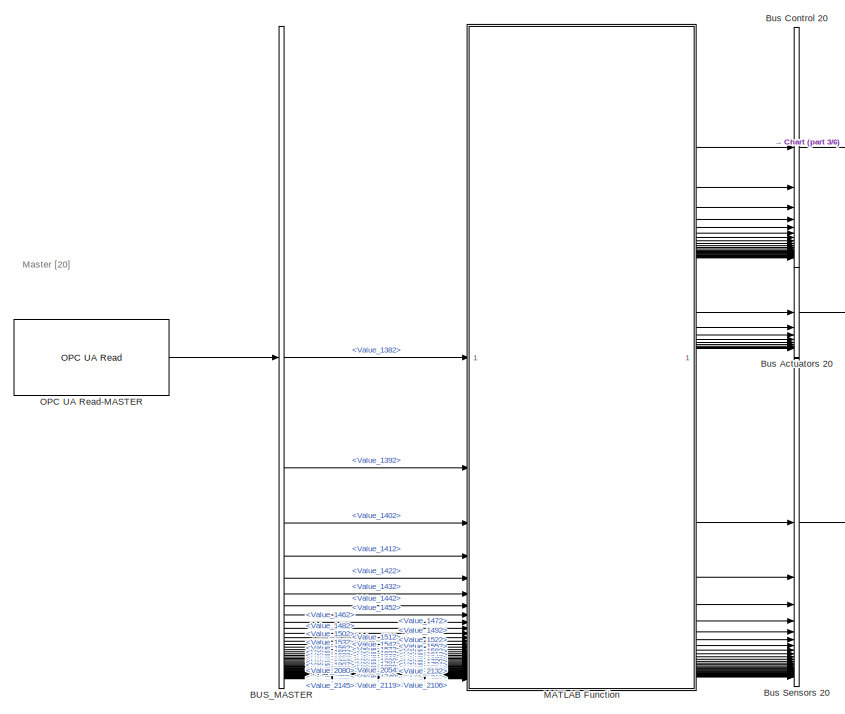
[diagram: root canvas - part 1/6, top center region]
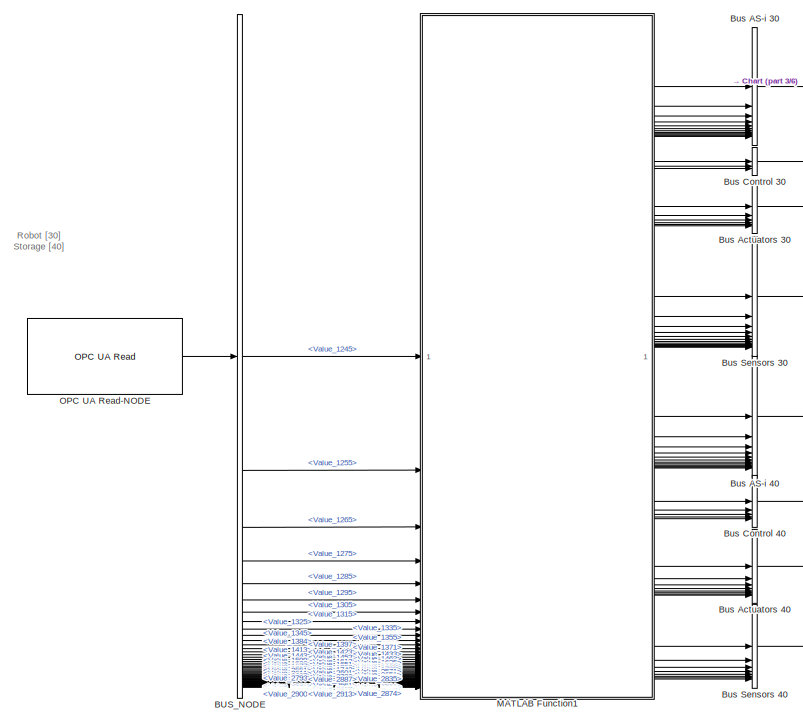
[diagram: root canvas - part 2/6, top center region]
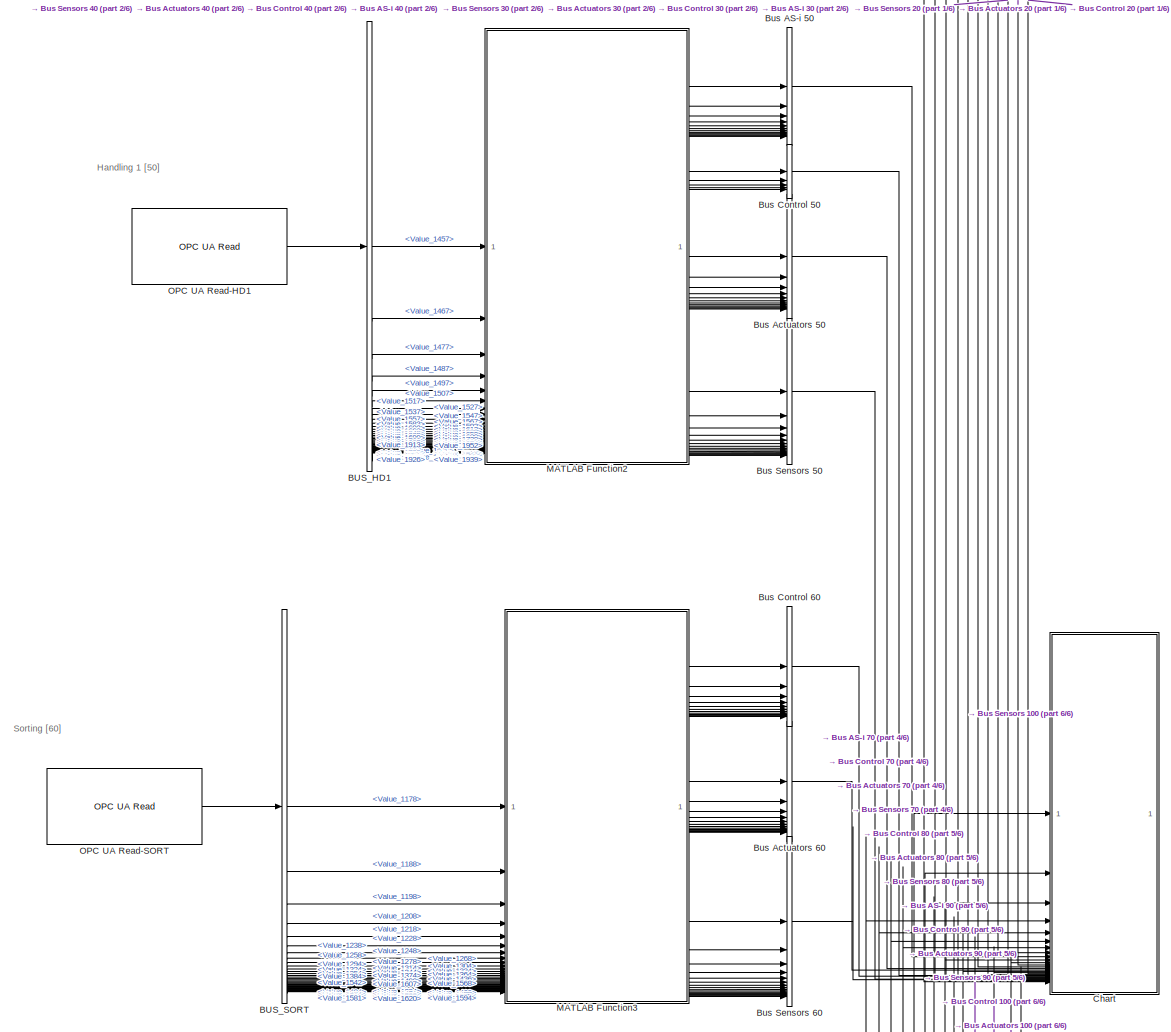
[diagram: root canvas - part 3/6, full width, middle band]
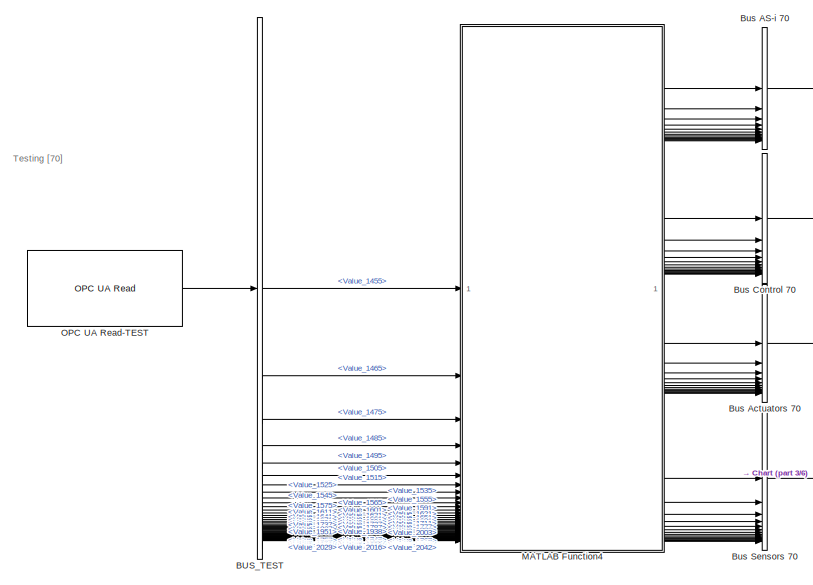
[diagram: root canvas - part 4/6, central region]
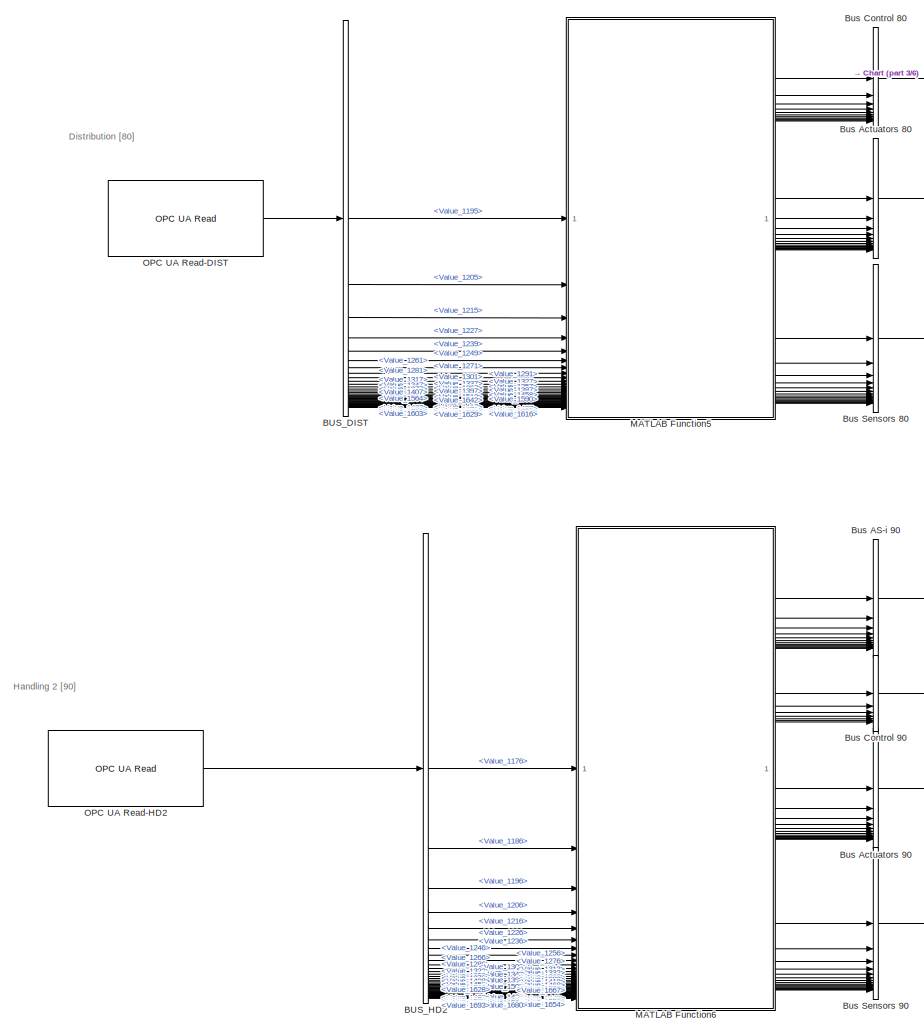
[diagram: root canvas - part 5/6, full width, bottom band]
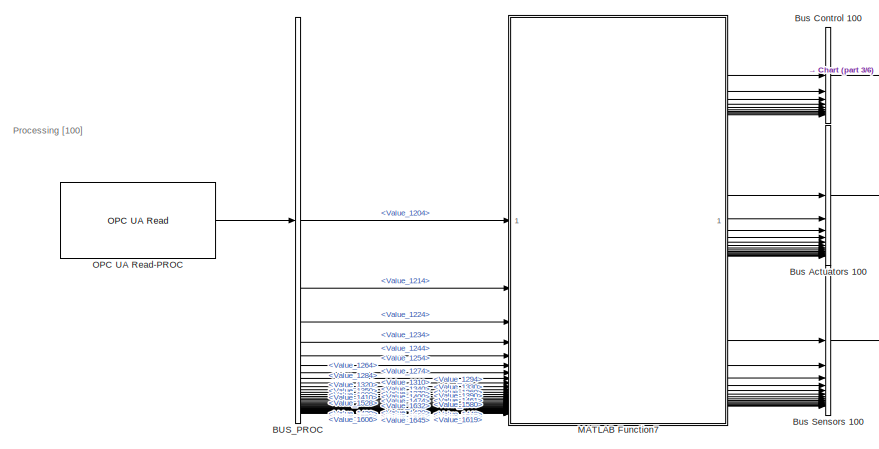
[diagram: root canvas - part 6/6, bottom center region]
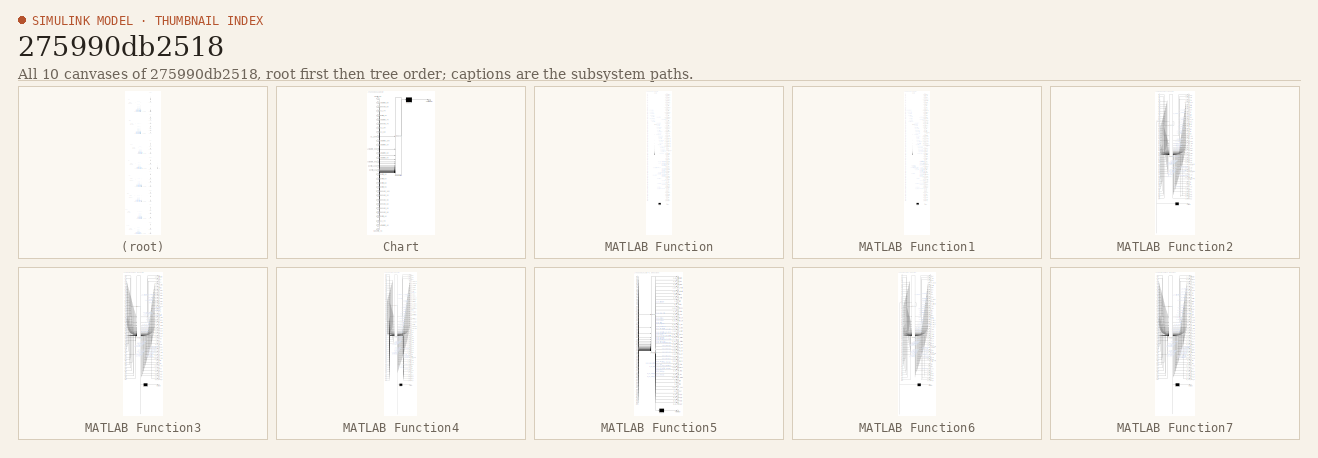
[diagram: thumbnail index - all 10 canvases of the model, root first then tree order]
MODEL slx_275990db2518
KIND model
CONFIG AbsTol = auto
CONFIG EnableMultiTasking = off
CONFIG FixedStep = auto
CONFIG MaxStep = 0.1
CONFIG MinStep = auto
CONFIG PreLoadFcn = load("BUS_CONFIG.mat")
CONFIG RelTol = 1e-2
CONFIG SampleTimeConstraint = Unconstrained
CONFIG SolverName = ode23tb
CONFIG StartTime = 0.0
CONFIG StopTime = inf
BLOCK [BusSelector] BUS_DIST
  OutputSignals = Value_1195,Value_1205,Value_1215,Value_1227,Value_1239,Value_1249,Value_1261,Value_1271,Value_1281,Value_1291,Value_1301,Value_1317,Value_1327,Value_1337,Value_1347,Value_1357,Value_1367,Value_1377,Value_1387,Value_1397,Value_1407,Value_1417,Value_1427,Value_1437,Value_1458,Value_1471,Value_1486,Value_1499,Value_1512,Value_1525,Value_1538,Value_1551,Value_1564,Value_1577,Value_1590,Value_1603,Valu...<+28ch>
BLOCK [BusSelector] BUS_HD1
  OutputSignals = Value_1457,Value_1467,Value_1477,Value_1487,Value_1497,Value_1507,Value_1517,Value_1527,Value_1537,Value_1547,Value_1557,Value_1567,Value_1583,Value_1593,Value_1603,Value_1613,Value_1623,Value_1639,Value_1649,Value_1659,Value_1669,Value_1679,Value_1689,Value_1699,Value_1709,Value_1719,Value_1729,Value_1739,Value_1749,Value_1768,Value_1781,Value_1796,Value_1809,Value_1822,Value_1835,Value_1848,Valu...<+83ch>
BLOCK [BusSelector] BUS_HD2
  OutputSignals = Value_1176,Value_1186,Value_1196,Value_1206,Value_1216,Value_1226,Value_1236,Value_1246,Value_1256,Value_1266,Value_1276,Value_1286,Value_1302,Value_1312,Value_1322,Value_1332,Value_1342,Value_1352,Value_1362,Value_1378,Value_1388,Value_1398,Value_1408,Value_1418,Value_1428,Value_1438,Value_1448,Value_1458,Value_1468,Value_1478,Value_1488,Value_1509,Value_1522,Value_1537,Value_1550,Value_1563,Valu...<+105ch>
BLOCK [BusSelector] BUS_MASTER
  OutputSignals = Value_1382,Value_1392,Value_1402,Value_1412,Value_1422,Value_1432,Value_1442,Value_1452,Value_1462,Value_1472,Value_1482,Value_1492,Value_1502,Value_1512,Value_1522,Value_1532,Value_1542,Value_1552,Value_1562,Value_1572,Value_1582,Value_1592,Value_1602,Value_1612,Value_1628,Value_1638,Value_1648,Value_1658,Value_1668,Value_1678,Value_1688,Value_1698,Value_1708,Value_1727,Value_1740,Value_1755,Valu...<+325ch>
BLOCK [BusSelector] BUS_NODE
  OutputSignals = Value_1245,Value_1255,Value_1265,Value_1275,Value_1285,Value_1295,Value_1305,Value_1315,Value_1325,Value_1335,Value_1345,Value_1355,Value_1384,Value_1397,Value_1371,Value_1413,Value_1423,Value_1433,Value_1443,Value_1453,Value_1463,Value_1599,Value_1612,Value_1625,Value_1638,Value_1651,Value_1664,Value_1677,Value_1690,Value_1703,Value_1716,Value_1729,Value_1742,Value_2551,Value_2561,Value_2571,Valu...<+325ch>
BLOCK [BusSelector] BUS_PROC
  OutputSignals = Value_1204,Value_1214,Value_1224,Value_1234,Value_1244,Value_1254,Value_1264,Value_1274,Value_1284,Value_1294,Value_1310,Value_1320,Value_1330,Value_1340,Value_1350,Value_1360,Value_1370,Value_1380,Value_1390,Value_1400,Value_1410,Value_1420,Value_1430,Value_1440,Value_1461,Value_1474,Value_1489,Value_1502,Value_1515,Value_1528,Value_1541,Value_1554,Value_1567,Value_1580,Value_1593,Value_1606,Valu...<+28ch>
BLOCK [BusSelector] BUS_SORT
  OutputSignals = Value_1178,Value_1188,Value_1198,Value_1208,Value_1218,Value_1228,Value_1238,Value_1248,Value_1258,Value_1268,Value_1278,Value_1294,Value_1304,Value_1314,Value_1324,Value_1334,Value_1344,Value_1354,Value_1364,Value_1374,Value_1384,Value_1394,Value_1404,Value_1423,Value_1436,Value_1451,Value_1464,Value_1477,Value_1490,Value_1503,Value_1516,Value_1529,Value_1542,Value_1555,Value_1568,Value_1581,Valu...<+28ch>
BLOCK [BusSelector] BUS_TEST
  OutputSignals = Value_1455,Value_1465,Value_1475,Value_1485,Value_1495,Value_1505,Value_1515,Value_1525,Value_1535,Value_1545,Value_1555,Value_1565,Value_1575,Value_1591,Value_1601,Value_1611,Value_1621,Value_1631,Value_1641,Value_1651,Value_1661,Value_1671,Value_1681,Value_1691,Value_1701,Value_1711,Value_1727,Value_1737,Value_1747,Value_1757,Value_1767,Value_1777,Value_1787,Value_1797,Value_1807,Value_1817,Valu...<+182ch>
BLOCK [BusCreator] Bus AS-i 30
  DisplayOption = bar
  InheritFromInputs = on
  Inputs = 12
  NameLocation = right
  NonVirtualBus = on
  OutDataTypeStr = Bus: B_ASI_ROBOT
BLOCK [BusCreator] Bus AS-i 40
  DisplayOption = bar
  InheritFromInputs = on
  Inputs = 12
  NameLocation = right
  NonVirtualBus = on
  OutDataTypeStr = Bus: B_ASI_STORAGE
BLOCK [BusCreator] Bus AS-i 50
  DisplayOption = bar
  InheritFromInputs = on
  Inputs = 12
  NameLocation = right
  NonVirtualBus = on
  OutDataTypeStr = Bus: B_ASI_HD1
BLOCK [BusCreator] Bus AS-i 70
  DisplayOption = bar
  InheritFromInputs = on
  Inputs = 13
  NameLocation = right
  NonVirtualBus = on
  OutDataTypeStr = Bus: B_ASI_TEST
BLOCK [BusCreator] Bus AS-i 90
  DisplayOption = bar
  InheritFromInputs = on
  Inputs = 12
  NameLocation = right
  NonVirtualBus = on
  OutDataTypeStr = Bus: B_ASI_HD2
BLOCK [BusCreator] Bus Actuators 100
  DisplayOption = bar
  InheritFromInputs = on
  Inputs = 14
  NameLocation = right
  NonVirtualBus = on
  OutDataTypeStr = Bus: B_F_PROC
BLOCK [BusCreator] Bus Actuators 20
  DisplayOption = bar
  InheritFromInputs = on
  Inputs = 9
  NameLocation = right
  NonVirtualBus = on
  OutDataTypeStr = Bus: B_F_MASTER
BLOCK [BusCreator] Bus Actuators 30
  DisplayOption = bar
  InheritFromInputs = on
  Inputs = 6
  NameLocation = right
  NonVirtualBus = on
  OutDataTypeStr = Bus: B_F_ROBOT
BLOCK [BusCreator] Bus Actuators 40
  DisplayOption = bar
  InheritFromInputs = on
  Inputs = 8
  NameLocation = right
  NonVirtualBus = on
  OutDataTypeStr = Bus: B_F_STORAGE
BLOCK [BusCreator] Bus Actuators 50
  DisplayOption = bar
  InheritFromInputs = on
  Inputs = 12
  NameLocation = right
  NonVirtualBus = on
  OutDataTypeStr = Bus: B_F_HD1
BLOCK [BusCreator] Bus Actuators 60
  DisplayOption = bar
  InheritFromInputs = on
  Inputs = 12
  NameLocation = right
  NonVirtualBus = on
  OutDataTypeStr = Bus: B_F_SORT
BLOCK [BusCreator] Bus Actuators 70
  DisplayOption = bar
  InheritFromInputs = on
  Inputs = 12
  NameLocation = right
  NonVirtualBus = on
  OutDataTypeStr = Bus: B_F_TEST
BLOCK [BusCreator] Bus Actuators 80
  DisplayOption = bar
  InheritFromInputs = on
  Inputs = 13
  NameLocation = right
  NonVirtualBus = on
  OutDataTypeStr = Bus: B_F_DIST
BLOCK [BusCreator] Bus Actuators 90
  DisplayOption = bar
  InheritFromInputs = on
  Inputs = 12
  NameLocation = right
  NonVirtualBus = on
  OutDataTypeStr = Bus: B_F_HD2
BLOCK [BusCreator] Bus Control 100
  DisplayOption = bar
  InheritFromInputs = on
  Inputs = 10
  NameLocation = right
  NonVirtualBus = on
  OutDataTypeStr = Bus: B_C_PROC
BLOCK [BusCreator] Bus Control 20
  DisplayOption = bar
  InheritFromInputs = on
  Inputs = 24
  NameLocation = right
  NonVirtualBus = on
  OutDataTypeStr = Bus: B_C_MASTER
BLOCK [BusCreator] Bus Control 30
  DisplayOption = bar
  InheritFromInputs = on
  Inputs = 3
  NameLocation = right
  NonVirtualBus = on
  OutDataTypeStr = Bus: B_C_ROBOT
BLOCK [BusCreator] Bus Control 40
  DisplayOption = bar
  InheritFromInputs = on
  Inputs = 5
  NameLocation = right
  NonVirtualBus = on
  OutDataTypeStr = Bus: B_C_STORAGE
BLOCK [BusCreator] Bus Control 50
  DisplayOption = bar
  InheritFromInputs = on
  Inputs = 5
  NameLocation = right
  NonVirtualBus = on
  OutDataTypeStr = Bus: B_C_HD1
BLOCK [BusCreator] Bus Control 60
  DisplayOption = bar
  InheritFromInputs = on
  Inputs = 11
  NameLocation = right
  NonVirtualBus = on
  OutDataTypeStr = Bus: B_C_SORT
BLOCK [BusCreator] Bus Control 70
  DisplayOption = bar
  InheritFromInputs = on
  Inputs = 13
  NameLocation = right
  NonVirtualBus = on
  OutDataTypeStr = Bus: B_C_TEST
BLOCK [BusCreator] Bus Control 80
  DisplayOption = bar
  InheritFromInputs = on
  Inputs = 11
  NameLocation = right
  NonVirtualBus = on
  OutDataTypeStr = Bus: B_C_DIST
BLOCK [BusCreator] Bus Control 90
  DisplayOption = bar
  InheritFromInputs = on
  Inputs = 7
  NameLocation = right
  NonVirtualBus = on
  OutDataTypeStr = Bus: B_C_HD2
BLOCK [BusCreator] Bus Sensors 100
  DisplayOption = bar
  InheritFromInputs = on
  Inputs = 15
  NameLocation = right
  NonVirtualBus = on
  OutDataTypeStr = Bus: B_S_PROC
BLOCK [BusCreator] Bus Sensors 20
  DisplayOption = bar
  InheritFromInputs = on
  Inputs = 33
  NameLocation = right
  NonVirtualBus = on
  OutDataTypeStr = Bus: B_S_MASTER
BLOCK [BusCreator] Bus Sensors 30
  DisplayOption = bar
  InheritFromInputs = on
  Inputs = 12
  NameLocation = right
  NonVirtualBus = on
  OutDataTypeStr = Bus: B_S_ROBOT
BLOCK [BusCreator] Bus Sensors 40
  DisplayOption = bar
  InheritFromInputs = on
  Inputs = 8
  NameLocation = right
  NonVirtualBus = on
  OutDataTypeStr = Bus: B_S_STORAGE
BLOCK [BusCreator] Bus Sensors 50
  DisplayOption = bar
  InheritFromInputs = on
  Inputs = 15
  NameLocation = right
  NonVirtualBus = on
  OutDataTypeStr = Bus: B_S_HD1
BLOCK [BusCreator] Bus Sensors 60
  DisplayOption = bar
  InheritFromInputs = on
  Inputs = 16
  NameLocation = right
  NonVirtualBus = on
  OutDataTypeStr = Bus: B_S_SORT
BLOCK [BusCreator] Bus Sensors 70
  DisplayOption = bar
  InheritFromInputs = on
  Inputs = 15
  NameLocation = right
  NonVirtualBus = on
  OutDataTypeStr = Bus: B_S_TEST
BLOCK [BusCreator] Bus Sensors 80
  DisplayOption = bar
  InheritFromInputs = on
  Inputs = 15
  NameLocation = right
  NonVirtualBus = on
  OutDataTypeStr = Bus: B_S_DIST
BLOCK [BusCreator] Bus Sensors 90
  DisplayOption = bar
  InheritFromInputs = on
  Inputs = 15
  NameLocation = right
  NonVirtualBus = on
  OutDataTypeStr = Bus: B_S_HD2
BLOCK [SubSystem] Chart
  ErrorFcn = Stateflow.Translate.translate
  PermitHierarchicalResolution = ExplicitOnly
  PortSchema = {"entries":[{"content":{"sides":[{"content":{"connectorIds":["In18","In12","In24","In8","In19","In13","In25","In30","In29","In31","In32","In9","In20","In14","In26","In21","In15","In27","In4","In5","In6","In7","In1","In2","In3","In10","In22","In16","In28","In17","In11","In23"]},"type":"ConnectorPlacement.EquallySpacedRectSide","uuid":"e54bf7d4-7c7d-41d9-a8b8-f479ac319a99"},{"content":{"side":"RIGHT...<+407ch>
  SFBlockType = Chart
  TreatAsAtomicUnit = on
BLOCK [Demux] Chart/ Demux 
  Outputs = 1
BLOCK [S-Function] Chart/ SFunction 
  EnableBusSupport = off
  FunctionName = sf_sfun
  PortCounts = [32 1]
  SFcnIsStateOwnerBlock = off
  SFunctionDeploymentMode = off
  Tag = Stateflow S-Function 8
BLOCK [Terminator] Chart/ Terminator 
BLOCK [Inport] Chart/AS_i_30
  Port = 8
BLOCK [Inport] Chart/AS_i_40
  Port = 30
BLOCK [Inport] Chart/AS_i_50
  Port = 9
BLOCK [Inport] Chart/AS_i_70
  Port = 4
BLOCK [Inport] Chart/AS_i_90
  Port = 10
BLOCK [Inport] Chart/Actuators_100
  Port = 11
BLOCK [Inport] Chart/Actuators_20
  Port = 12
BLOCK [Inport] Chart/Actuators_30
  Port = 13
BLOCK [Inport] Chart/Actuators_40
  Port = 31
BLOCK [Inport] Chart/Actuators_50
  Port = 14
BLOCK [Inport] Chart/Actuators_60
  Port = 15
BLOCK [Inport] Chart/Actuators_70
  Port = 6
BLOCK [Inport] Chart/Actuators_80
  Port = 2
BLOCK [Inport] Chart/Actuators_90
  Port = 16
BLOCK [Inport] Chart/Control_100
  Port = 17
BLOCK [Inport] Chart/Control_20
  Port = 18
BLOCK [Inport] Chart/Control_30
  Port = 19
BLOCK [Inport] Chart/Control_40
  Port = 29
BLOCK [Inport] Chart/Control_50
  Port = 20
BLOCK [Inport] Chart/Control_60
  Port = 21
BLOCK [Inport] Chart/Control_70
  Port = 5
BLOCK [Inport] Chart/Control_80
BLOCK [Inport] Chart/Control_90
  Port = 22
BLOCK [Inport] Chart/Sensors_100
  Port = 23
BLOCK [Inport] Chart/Sensors_20
  Port = 24
BLOCK [Inport] Chart/Sensors_30
  Port = 25
BLOCK [Inport] Chart/Sensors_40
  Port = 32
BLOCK [Inport] Chart/Sensors_50
  Port = 26
BLOCK [Inport] Chart/Sensors_60
  Port = 27
BLOCK [Inport] Chart/Sensors_70
  Port = 7
BLOCK [Inport] Chart/Sensors_80
  Port = 3
BLOCK [Inport] Chart/Sensors_90
  Port = 28
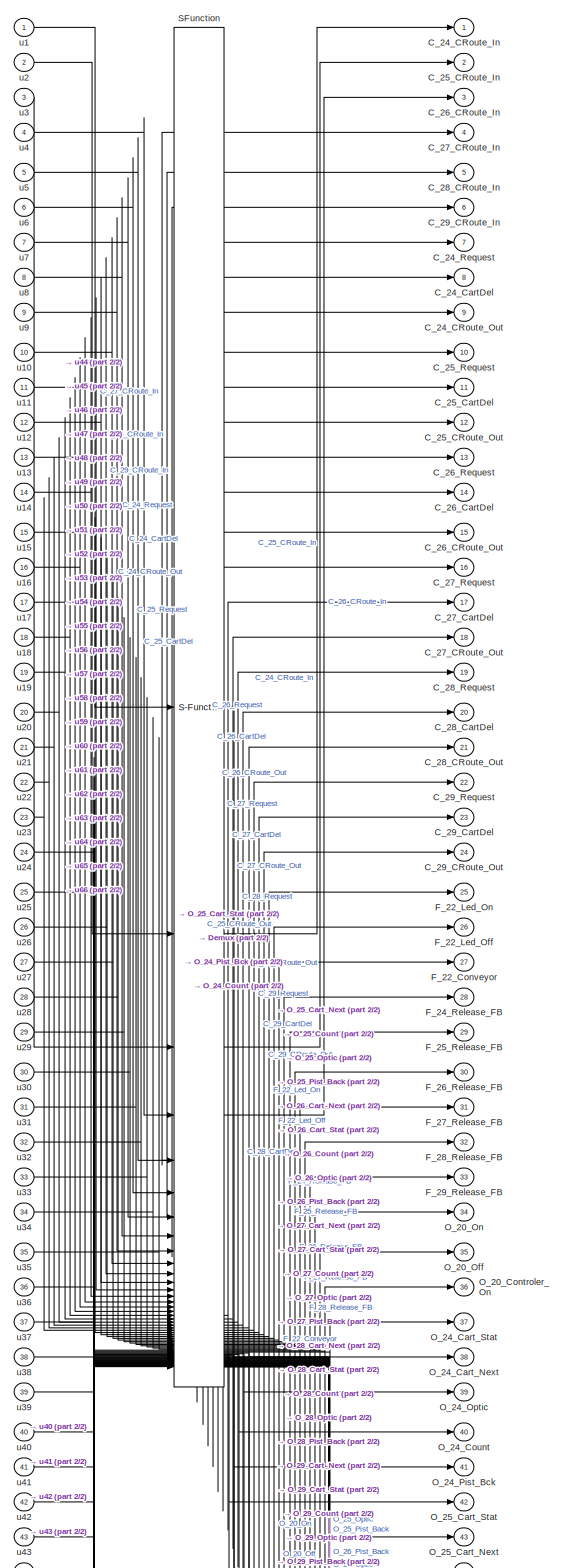
[diagram: MATLAB Function - part 1/2, full width, top band]
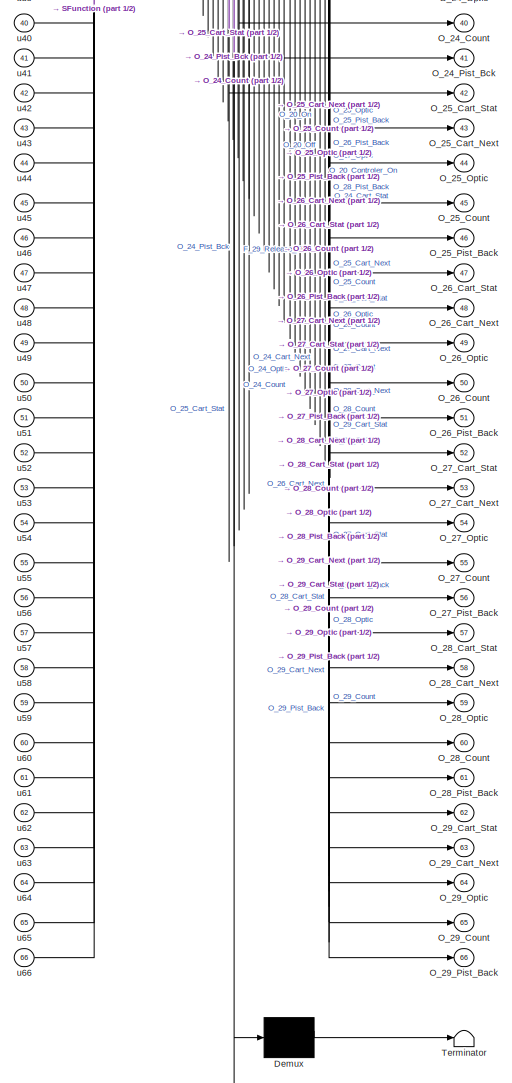
[diagram: MATLAB Function - part 2/2, full width, middle band]
BLOCK [SubSystem] MATLAB Function
  ErrorFcn = Stateflow.Translate.translate
  PermitHierarchicalResolution = ExplicitOnly
  SFBlockType = MATLAB Function
  TreatAsAtomicUnit = on
BLOCK [Demux] MATLAB Function/ Demux 
  Outputs = 1
BLOCK [S-Function] MATLAB Function/ SFunction 
  EnableBusSupport = off
  FunctionName = sf_sfun
  PortCounts = [66 67]
  SFcnIsStateOwnerBlock = off
  SFunctionDeploymentMode = off
  Tag = Stateflow S-Function 9
BLOCK [Terminator] MATLAB Function/ Terminator 
BLOCK [Outport] MATLAB Function/C_24_CRoute_In
BLOCK [Outport] MATLAB Function/C_24_CRoute_Out
  Port = 9
BLOCK [Outport] MATLAB Function/C_24_CartDel
  Port = 8
BLOCK [Outport] MATLAB Function/C_24_Request
  Port = 7
BLOCK [Outport] MATLAB Function/C_25_CRoute_In
  Port = 2
BLOCK [Outport] MATLAB Function/C_25_CRoute_Out
  Port = 12
BLOCK [Outport] MATLAB Function/C_25_CartDel
  Port = 11
BLOCK [Outport] MATLAB Function/C_25_Request
  Port = 10
BLOCK [Outport] MATLAB Function/C_26_CRoute_In
  Port = 3
BLOCK [Outport] MATLAB Function/C_26_CRoute_Out
  Port = 15
BLOCK [Outport] MATLAB Function/C_26_CartDel
  Port = 14
BLOCK [Outport] MATLAB Function/C_26_Request
  Port = 13
BLOCK [Outport] MATLAB Function/C_27_CRoute_In
  Port = 4
BLOCK [Outport] MATLAB Function/C_27_CRoute_Out
  Port = 18
BLOCK [Outport] MATLAB Function/C_27_CartDel
  Port = 17
BLOCK [Outport] MATLAB Function/C_27_Request
  Port = 16
BLOCK [Outport] MATLAB Function/C_28_CRoute_In
  Port = 5
BLOCK [Outport] MATLAB Function/C_28_CRoute_Out
  Port = 21
BLOCK [Outport] MATLAB Function/C_28_CartDel
  Port = 20
BLOCK [Outport] MATLAB Function/C_28_Request
  Port = 19
BLOCK [Outport] MATLAB Function/C_29_CRoute_In
  Port = 6
BLOCK [Outport] MATLAB Function/C_29_CRoute_Out
  Port = 24
BLOCK [Outport] MATLAB Function/C_29_CartDel
  Port = 23
BLOCK [Outport] MATLAB Function/C_29_Request
  Port = 22
BLOCK [Outport] MATLAB Function/F_22_Conveyor
  Port = 27
BLOCK [Outport] MATLAB Function/F_22_Led_Off
  Port = 26
BLOCK [Outport] MATLAB Function/F_22_Led_On
  Port = 25
BLOCK [Outport] MATLAB Function/F_24_Release_FB
  Port = 28
BLOCK [Outport] MATLAB Function/F_25_Release_FB
  Port = 29
BLOCK [Outport] MATLAB Function/F_26_Release_FB
  Port = 30
BLOCK [Outport] MATLAB Function/F_27_Release_FB
  Port = 31
BLOCK [Outport] MATLAB Function/F_28_Release_FB
  Port = 32
BLOCK [Outport] MATLAB Function/F_29_Release_FB
  Port = 33
BLOCK [Outport] MATLAB Function/O_20_Controler_On
  Port = 36
BLOCK [Outport] MATLAB Function/O_20_Off
  Port = 35
BLOCK [Outport] MATLAB Function/O_20_On
  Port = 34
BLOCK [Outport] MATLAB Function/O_24_Cart_Next
  Port = 38
BLOCK [Outport] MATLAB Function/O_24_Cart_Stat
  Port = 37
BLOCK [Outport] MATLAB Function/O_24_Count
  Port = 40
BLOCK [Outport] MATLAB Function/O_24_Optic
  Port = 39
BLOCK [Outport] MATLAB Function/O_24_Pist_Bck
  Port = 41
BLOCK [Outport] MATLAB Function/O_25_Cart_Next
  Port = 43
BLOCK [Outport] MATLAB Function/O_25_Cart_Stat
  Port = 42
BLOCK [Outport] MATLAB Function/O_25_Count
  Port = 45
BLOCK [Outport] MATLAB Function/O_25_Optic
  Port = 44
BLOCK [Outport] MATLAB Function/O_25_Pist_Back
  Port = 46
BLOCK [Outport] MATLAB Function/O_26_Cart_Next
  Port = 48
BLOCK [Outport] MATLAB Function/O_26_Cart_Stat
  Port = 47
BLOCK [Outport] MATLAB Function/O_26_Count
  Port = 50
BLOCK [Outport] MATLAB Function/O_26_Optic
  Port = 49
BLOCK [Outport] MATLAB Function/O_26_Pist_Back
  Port = 51
BLOCK [Outport] MATLAB Function/O_27_Cart_Next
  Port = 53
BLOCK [Outport] MATLAB Function/O_27_Cart_Stat
  Port = 52
BLOCK [Outport] MATLAB Function/O_27_Count
  Port = 55
BLOCK [Outport] MATLAB Function/O_27_Optic
  Port = 54
BLOCK [Outport] MATLAB Function/O_27_Pist_Back
  Port = 56
BLOCK [Outport] MATLAB Function/O_28_Cart_Next
  Port = 58
BLOCK [Outport] MATLAB Function/O_28_Cart_Stat
  Port = 57
BLOCK [Outport] MATLAB Function/O_28_Count
  Port = 60
BLOCK [Outport] MATLAB Function/O_28_Optic
  Port = 59
BLOCK [Outport] MATLAB Function/O_28_Pist_Back
  Port = 61
BLOCK [Outport] MATLAB Function/O_29_Cart_Next
  Port = 63
BLOCK [Outport] MATLAB Function/O_29_Cart_Stat
  Port = 62
BLOCK [Outport] MATLAB Function/O_29_Count
  Port = 65
BLOCK [Outport] MATLAB Function/O_29_Optic
  Port = 64
BLOCK [Outport] MATLAB Function/O_29_Pist_Back
  Port = 66
BLOCK [Inport] MATLAB Function/u1
BLOCK [Inport] MATLAB Function/u10
  Port = 10
BLOCK [Inport] MATLAB Function/u11
  Port = 11
BLOCK [Inport] MATLAB Function/u12
  Port = 12
BLOCK [Inport] MATLAB Function/u13
  Port = 13
BLOCK [Inport] MATLAB Function/u14
  Port = 14
BLOCK [Inport] MATLAB Function/u15
  Port = 15
BLOCK [Inport] MATLAB Function/u16
  Port = 16
BLOCK [Inport] MATLAB Function/u17
  Port = 17
BLOCK [Inport] MATLAB Function/u18
  Port = 18
BLOCK [Inport] MATLAB Function/u19
  Port = 19
BLOCK [Inport] MATLAB Function/u2
  Port = 2
BLOCK [Inport] MATLAB Function/u20
  Port = 20
BLOCK [Inport] MATLAB Function/u21
  Port = 21
BLOCK [Inport] MATLAB Function/u22
  Port = 22
BLOCK [Inport] MATLAB Function/u23
  Port = 23
BLOCK [Inport] MATLAB Function/u24
  Port = 24
BLOCK [Inport] MATLAB Function/u25
  Port = 25
BLOCK [Inport] MATLAB Function/u26
  Port = 26
BLOCK [Inport] MATLAB Function/u27
  Port = 27
BLOCK [Inport] MATLAB Function/u28
  Port = 28
BLOCK [Inport] MATLAB Function/u29
  Port = 29
BLOCK [Inport] MATLAB Function/u3
  Port = 3
BLOCK [Inport] MATLAB Function/u30
  Port = 30
BLOCK [Inport] MATLAB Function/u31
  Port = 31
BLOCK [Inport] MATLAB Function/u32
  Port = 32
BLOCK [Inport] MATLAB Function/u33
  Port = 33
BLOCK [Inport] MATLAB Function/u34
  Port = 34
BLOCK [Inport] MATLAB Function/u35
  Port = 35
BLOCK [Inport] MATLAB Function/u36
  Port = 36
BLOCK [Inport] MATLAB Function/u37
  Port = 37
BLOCK [Inport] MATLAB Function/u38
  Port = 38
BLOCK [Inport] MATLAB Function/u39
  Port = 39
BLOCK [Inport] MATLAB Function/u4
  Port = 4
BLOCK [Inport] MATLAB Function/u40
  Port = 40
BLOCK [Inport] MATLAB Function/u41
  Port = 41
BLOCK [Inport] MATLAB Function/u42
  Port = 42
BLOCK [Inport] MATLAB Function/u43
  Port = 43
BLOCK [Inport] MATLAB Function/u44
  Port = 44
BLOCK [Inport] MATLAB Function/u45
  Port = 45
BLOCK [Inport] MATLAB Function/u46
  Port = 46
BLOCK [Inport] MATLAB Function/u47
  Port = 47
BLOCK [Inport] MATLAB Function/u48
  Port = 48
BLOCK [Inport] MATLAB Function/u49
  Port = 49
BLOCK [Inport] MATLAB Function/u5
  Port = 5
BLOCK [Inport] MATLAB Function/u50
  Port = 50
BLOCK [Inport] MATLAB Function/u51
  Port = 51
BLOCK [Inport] MATLAB Function/u52
  Port = 52
BLOCK [Inport] MATLAB Function/u53
  Port = 53
BLOCK [Inport] MATLAB Function/u54
  Port = 54
BLOCK [Inport] MATLAB Function/u55
  Port = 55
BLOCK [Inport] MATLAB Function/u56
  Port = 56
BLOCK [Inport] MATLAB Function/u57
  Port = 57
BLOCK [Inport] MATLAB Function/u58
  Port = 58
BLOCK [Inport] MATLAB Function/u59
  Port = 59
BLOCK [Inport] MATLAB Function/u6
  Port = 6
BLOCK [Inport] MATLAB Function/u60
  Port = 60
BLOCK [Inport] MATLAB Function/u61
  Port = 61
BLOCK [Inport] MATLAB Function/u62
  Port = 62
BLOCK [Inport] MATLAB Function/u63
  Port = 63
BLOCK [Inport] MATLAB Function/u64
  Port = 64
BLOCK [Inport] MATLAB Function/u65
  Port = 65
BLOCK [Inport] MATLAB Function/u66
  Port = 66
BLOCK [Inport] MATLAB Function/u7
  Port = 7
BLOCK [Inport] MATLAB Function/u8
  Port = 8
BLOCK [Inport] MATLAB Function/u9
  Port = 9
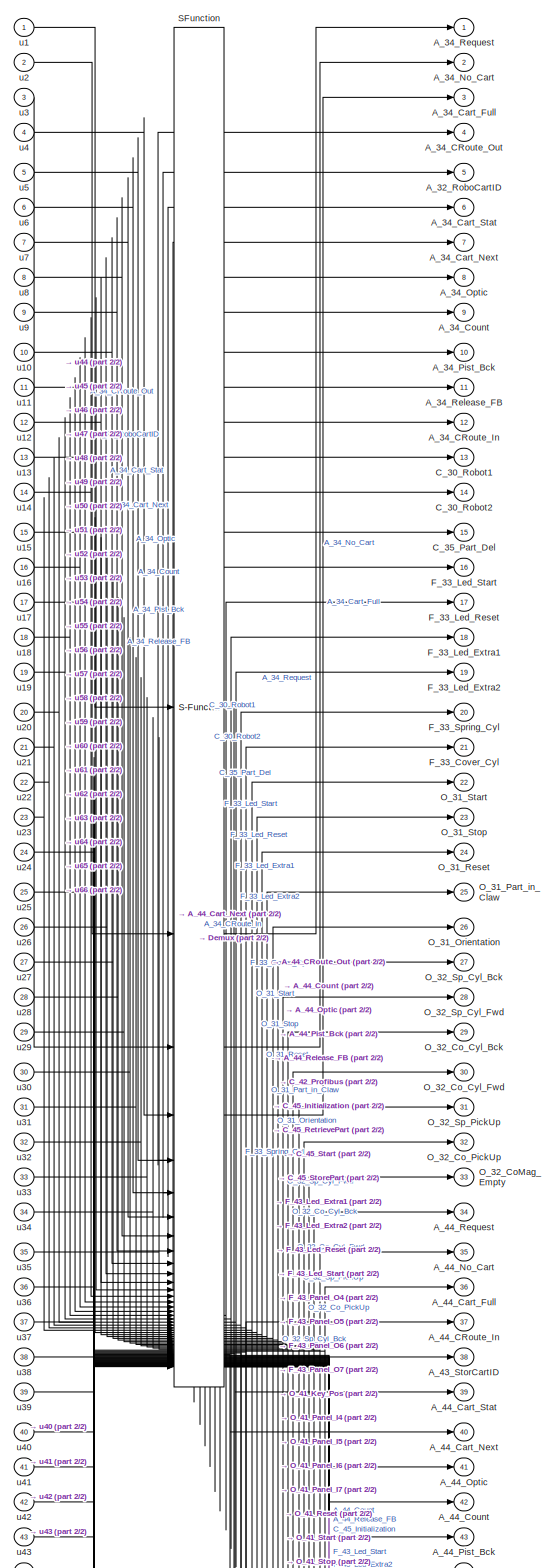
[diagram: MATLAB Function1 - part 1/2, full width, top band]
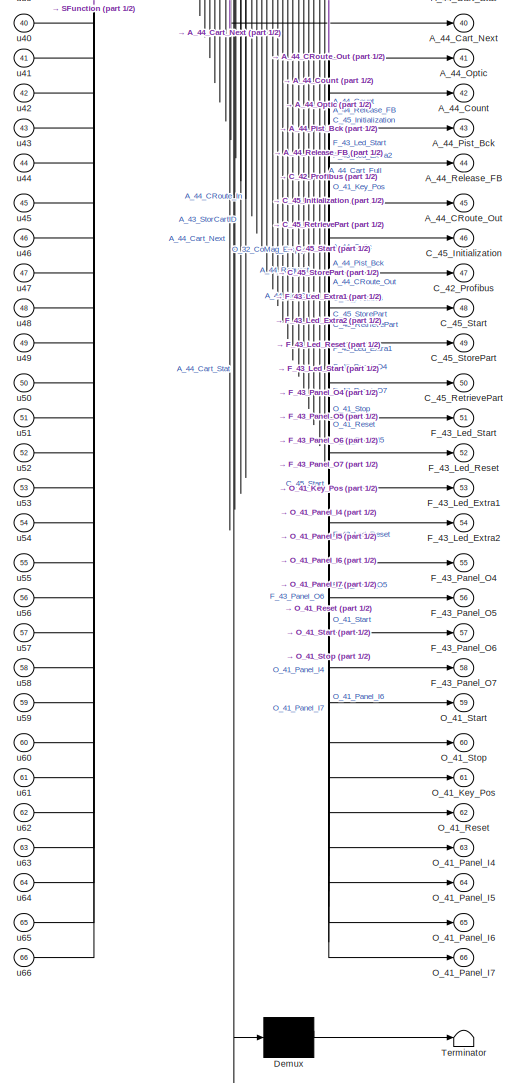
[diagram: MATLAB Function1 - part 2/2, full width, middle band]
BLOCK [SubSystem] MATLAB Function1
  ErrorFcn = Stateflow.Translate.translate
  PermitHierarchicalResolution = ExplicitOnly
  SFBlockType = MATLAB Function
  TreatAsAtomicUnit = on
BLOCK [Demux] MATLAB Function1/ Demux 
  Outputs = 1
BLOCK [S-Function] MATLAB Function1/ SFunction 
  EnableBusSupport = off
  FunctionName = sf_sfun
  PortCounts = [66 67]
  SFcnIsStateOwnerBlock = off
  SFunctionDeploymentMode = off
  Tag = Stateflow S-Function 10
BLOCK [Terminator] MATLAB Function1/ Terminator 
BLOCK [Outport] MATLAB Function1/A_32_RoboCartID
  Port = 5
BLOCK [Outport] MATLAB Function1/A_34_CRoute_In
  Port = 12
BLOCK [Outport] MATLAB Function1/A_34_CRoute_Out
  Port = 4
BLOCK [Outport] MATLAB Function1/A_34_Cart_Full
  Port = 3
BLOCK [Outport] MATLAB Function1/A_34_Cart_Next
  Port = 7
BLOCK [Outport] MATLAB Function1/A_34_Cart_Stat
  Port = 6
BLOCK [Outport] MATLAB Function1/A_34_Count
  Port = 9
BLOCK [Outport] MATLAB Function1/A_34_No_Cart
  Port = 2
BLOCK [Outport] MATLAB Function1/A_34_Optic
  Port = 8
BLOCK [Outport] MATLAB Function1/A_34_Pist_Bck
  Port = 10
BLOCK [Outport] MATLAB Function1/A_34_Release_FB
  Port = 11
BLOCK [Outport] MATLAB Function1/A_34_Request
BLOCK [Outport] MATLAB Function1/A_43_StorCartID
  Port = 38
BLOCK [Outport] MATLAB Function1/A_44_CRoute_In
  Port = 37
BLOCK [Outport] MATLAB Function1/A_44_CRoute_Out
  Port = 45
BLOCK [Outport] MATLAB Function1/A_44_Cart_Full
  Port = 36
BLOCK [Outport] MATLAB Function1/A_44_Cart_Next
  Port = 40
BLOCK [Outport] MATLAB Function1/A_44_Cart_Stat
  Port = 39
BLOCK [Outport] MATLAB Function1/A_44_Count
  Port = 42
BLOCK [Outport] MATLAB Function1/A_44_No_Cart
  Port = 35
BLOCK [Outport] MATLAB Function1/A_44_Optic
  Port = 41
BLOCK [Outport] MATLAB Function1/A_44_Pist_Bck
  Port = 43
BLOCK [Outport] MATLAB Function1/A_44_Release_FB
  Port = 44
BLOCK [Outport] MATLAB Function1/A_44_Request
  Port = 34
BLOCK [Outport] MATLAB Function1/C_30_Robot1
  Port = 13
BLOCK [Outport] MATLAB Function1/C_30_Robot2
  Port = 14
BLOCK [Outport] MATLAB Function1/C_35_Part_Del
  Port = 15
BLOCK [Outport] MATLAB Function1/C_42_Profibus
  Port = 47
BLOCK [Outport] MATLAB Function1/C_45_Initialization
  Port = 46
BLOCK [Outport] MATLAB Function1/C_45_RetrievePart
  Port = 50
BLOCK [Outport] MATLAB Function1/C_45_Start
  Port = 48
BLOCK [Outport] MATLAB Function1/C_45_StorePart
  Port = 49
BLOCK [Outport] MATLAB Function1/F_33_Cover_Cyl
  Port = 21
BLOCK [Outport] MATLAB Function1/F_33_Led_Extra1
  Port = 18
BLOCK [Outport] MATLAB Function1/F_33_Led_Extra2
  Port = 19
BLOCK [Outport] MATLAB Function1/F_33_Led_Reset
  Port = 17
BLOCK [Outport] MATLAB Function1/F_33_Led_Start
  Port = 16
BLOCK [Outport] MATLAB Function1/F_33_Spring_Cyl
  Port = 20
BLOCK [Outport] MATLAB Function1/F_43_Led_Extra1
  Port = 53
BLOCK [Outport] MATLAB Function1/F_43_Led_Extra2
  Port = 54
BLOCK [Outport] MATLAB Function1/F_43_Led_Reset
  Port = 52
BLOCK [Outport] MATLAB Function1/F_43_Led_Start
  Port = 51
BLOCK [Outport] MATLAB Function1/F_43_Panel_O4
  Port = 55
BLOCK [Outport] MATLAB Function1/F_43_Panel_O5
  Port = 56
BLOCK [Outport] MATLAB Function1/F_43_Panel_O6
  Port = 57
BLOCK [Outport] MATLAB Function1/F_43_Panel_O7
  Port = 58
BLOCK [Outport] MATLAB Function1/O_31_Orientation
  Port = 26
BLOCK [Outport] MATLAB Function1/O_31_Part_in_Claw
  Port = 25
BLOCK [Outport] MATLAB Function1/O_31_Reset
  Port = 24
BLOCK [Outport] MATLAB Function1/O_31_Start
  Port = 22
BLOCK [Outport] MATLAB Function1/O_31_Stop
  Port = 23
BLOCK [Outport] MATLAB Function1/O_32_CoMag_Empty
  Port = 33
BLOCK [Outport] MATLAB Function1/O_32_Co_Cyl_Bck
  Port = 29
BLOCK [Outport] MATLAB Function1/O_32_Co_Cyl_Fwd
  Port = 30
BLOCK [Outport] MATLAB Function1/O_32_Co_PickUp
  Port = 32
BLOCK [Outport] MATLAB Function1/O_32_Sp_Cyl_Bck
  Port = 27
BLOCK [Outport] MATLAB Function1/O_32_Sp_Cyl_Fwd
  Port = 28
BLOCK [Outport] MATLAB Function1/O_32_Sp_PickUp
  Port = 31
BLOCK [Outport] MATLAB Function1/O_41_Key_Pos
  Port = 61
BLOCK [Outport] MATLAB Function1/O_41_Panel_I4
  Port = 63
BLOCK [Outport] MATLAB Function1/O_41_Panel_I5
  Port = 64
BLOCK [Outport] MATLAB Function1/O_41_Panel_I6
  Port = 65
BLOCK [Outport] MATLAB Function1/O_41_Panel_I7
  Port = 66
BLOCK [Outport] MATLAB Function1/O_41_Reset
  Port = 62
BLOCK [Outport] MATLAB Function1/O_41_Start
  Port = 59
BLOCK [Outport] MATLAB Function1/O_41_Stop
  Port = 60
BLOCK [Inport] MATLAB Function1/u1
BLOCK [Inport] MATLAB Function1/u10
  Port = 10
BLOCK [Inport] MATLAB Function1/u11
  Port = 11
BLOCK [Inport] MATLAB Function1/u12
  Port = 12
BLOCK [Inport] MATLAB Function1/u13
  Port = 13
BLOCK [Inport] MATLAB Function1/u14
  Port = 14
BLOCK [Inport] MATLAB Function1/u15
  Port = 15
BLOCK [Inport] MATLAB Function1/u16
  Port = 16
BLOCK [Inport] MATLAB Function1/u17
  Port = 17
BLOCK [Inport] MATLAB Function1/u18
  Port = 18
BLOCK [Inport] MATLAB Function1/u19
  Port = 19
BLOCK [Inport] MATLAB Function1/u2
  Port = 2
BLOCK [Inport] MATLAB Function1/u20
  Port = 20
BLOCK [Inport] MATLAB Function1/u21
  Port = 21
BLOCK [Inport] MATLAB Function1/u22
  Port = 22
BLOCK [Inport] MATLAB Function1/u23
  Port = 23
BLOCK [Inport] MATLAB Function1/u24
  Port = 24
BLOCK [Inport] MATLAB Function1/u25
  Port = 25
BLOCK [Inport] MATLAB Function1/u26
  Port = 26
BLOCK [Inport] MATLAB Function1/u27
  Port = 27
BLOCK [Inport] MATLAB Function1/u28
  Port = 28
BLOCK [Inport] MATLAB Function1/u29
  Port = 29
BLOCK [Inport] MATLAB Function1/u3
  Port = 3
BLOCK [Inport] MATLAB Function1/u30
  Port = 30
BLOCK [Inport] MATLAB Function1/u31
  Port = 31
BLOCK [Inport] MATLAB Function1/u32
  Port = 32
BLOCK [Inport] MATLAB Function1/u33
  Port = 33
BLOCK [Inport] MATLAB Function1/u34
  Port = 34
BLOCK [Inport] MATLAB Function1/u35
  Port = 35
BLOCK [Inport] MATLAB Function1/u36
  Port = 36
BLOCK [Inport] MATLAB Function1/u37
  Port = 37
BLOCK [Inport] MATLAB Function1/u38
  Port = 38
BLOCK [Inport] MATLAB Function1/u39
  Port = 39
BLOCK [Inport] MATLAB Function1/u4
  Port = 4
BLOCK [Inport] MATLAB Function1/u40
  Port = 40
BLOCK [Inport] MATLAB Function1/u41
  Port = 41
BLOCK [Inport] MATLAB Function1/u42
  Port = 42
BLOCK [Inport] MATLAB Function1/u43
  Port = 43
BLOCK [Inport] MATLAB Function1/u44
  Port = 44
BLOCK [Inport] MATLAB Function1/u45
  Port = 45
BLOCK [Inport] MATLAB Function1/u46
  Port = 46
BLOCK [Inport] MATLAB Function1/u47
  Port = 47
BLOCK [Inport] MATLAB Function1/u48
  Port = 48
BLOCK [Inport] MATLAB Function1/u49
  Port = 49
BLOCK [Inport] MATLAB Function1/u5
  Port = 5
BLOCK [Inport] MATLAB Function1/u50
  Port = 50
BLOCK [Inport] MATLAB Function1/u51
  Port = 51
BLOCK [Inport] MATLAB Function1/u52
  Port = 52
BLOCK [Inport] MATLAB Function1/u53
  Port = 53
BLOCK [Inport] MATLAB Function1/u54
  Port = 54
BLOCK [Inport] MATLAB Function1/u55
  Port = 55
BLOCK [Inport] MATLAB Function1/u56
  Port = 56
BLOCK [Inport] MATLAB Function1/u57
  Port = 57
BLOCK [Inport] MATLAB Function1/u58
  Port = 58
BLOCK [Inport] MATLAB Function1/u59
  Port = 59
BLOCK [Inport] MATLAB Function1/u6
  Port = 6
BLOCK [Inport] MATLAB Function1/u60
  Port = 60
BLOCK [Inport] MATLAB Function1/u61
  Port = 61
BLOCK [Inport] MATLAB Function1/u62
  Port = 62
BLOCK [Inport] MATLAB Function1/u63
  Port = 63
BLOCK [Inport] MATLAB Function1/u64
  Port = 64
BLOCK [Inport] MATLAB Function1/u65
  Port = 65
BLOCK [Inport] MATLAB Function1/u66
  Port = 66
BLOCK [Inport] MATLAB Function1/u7
  Port = 7
BLOCK [Inport] MATLAB Function1/u8
  Port = 8
BLOCK [Inport] MATLAB Function1/u9
  Port = 9
BLOCK [SubSystem] MATLAB Function2
  ErrorFcn = Stateflow.Translate.translate
  PermitHierarchicalResolution = ExplicitOnly
  SFBlockType = MATLAB Function
  TreatAsAtomicUnit = on
BLOCK [Demux] MATLAB Function2/ Demux 
  Outputs = 1
BLOCK [S-Function] MATLAB Function2/ SFunction 
  EnableBusSupport = off
  FunctionName = sf_sfun
  PortCounts = [44 45]
  SFcnIsStateOwnerBlock = off
  SFunctionDeploymentMode = off
  Tag = Stateflow S-Function 11
BLOCK [Terminator] MATLAB Function2/ Terminator 
BLOCK [Outport] MATLAB Function2/A_53_SortCartID
  Port = 5
BLOCK [Outport] MATLAB Function2/A_54_CRoute_In
  Port = 12
BLOCK [Outport] MATLAB Function2/A_54_CRoute_Out
  Port = 4
BLOCK [Outport] MATLAB Function2/A_54_Cart_Full
  Port = 3
BLOCK [Outport] MATLAB Function2/A_54_Cart_Next
  Port = 7
BLOCK [Outport] MATLAB Function2/A_54_Cart_Stat
  Port = 6
BLOCK [Outport] MATLAB Function2/A_54_Count
  Port = 9
BLOCK [Outport] MATLAB Function2/A_54_No_Cart
  Port = 2
BLOCK [Outport] MATLAB Function2/A_54_Optic
  Port = 8
BLOCK [Outport] MATLAB Function2/A_54_Pist_Bck
  Port = 10
BLOCK [Outport] MATLAB Function2/A_54_Release_FB
  Port = 11
BLOCK [Outport] MATLAB Function2/A_54_Request
BLOCK [Outport] MATLAB Function2/C_52_Profibus
  Port = 15
BLOCK [Outport] MATLAB Function2/C_55_Cart2Del
  Port = 17
BLOCK [Outport] MATLAB Function2/C_55_Initialization
  Port = 13
BLOCK [Outport] MATLAB Function2/C_55_PD_Sort
  Port = 14
BLOCK [Outport] MATLAB Function2/C_55_Start
  Port = 16
BLOCK [Outport] MATLAB Function2/F_52_Claw_2_Cart
  Port = 19
BLOCK [Outport] MATLAB Function2/F_52_Claw_2_Del
  Port = 18
BLOCK [Outport] MATLAB Function2/F_52_Claw_Down
  Port = 20
BLOCK [Outport] MATLAB Function2/F_52_Close_Claw
  Port = 21
BLOCK [Outport] MATLAB Function2/F_53_Led_Extra1
  Port = 24
BLOCK [Outport] MATLAB Function2/F_53_Led_Extra2
  Port = 25
BLOCK [Outport] MATLAB Function2/F_53_Led_Reset
  Port = 23
BLOCK [Outport] MATLAB Function2/F_53_Led_Start
  Port = 22
BLOCK [Outport] MATLAB Function2/F_53_Panel_O4
  Port = 26
BLOCK [Outport] MATLAB Function2/F_53_Panel_O5
  Port = 27
BLOCK [Outport] MATLAB Function2/F_53_Panel_O6
  Port = 28
BLOCK [Outport] MATLAB Function2/F_53_Panel_O7
  Port = 29
BLOCK [Outport] MATLAB Function2/O_50_Claw_Cart
  Port = 31
BLOCK [Outport] MATLAB Function2/O_50_Claw_Del
  Port = 32
BLOCK [Outport] MATLAB Function2/O_50_Claw_High
  Port = 35
BLOCK [Outport] MATLAB Function2/O_50_Claw_Low
  Port = 34
BLOCK [Outport] MATLAB Function2/O_50_Claw_Reserve
  Port = 33
BLOCK [Outport] MATLAB Function2/O_50_Part_Reserve
  Port = 30
BLOCK [Outport] MATLAB Function2/O_50_Part_in_Claw
  Port = 36
BLOCK [Outport] MATLAB Function2/O_51_Key_Pos
  Port = 39
BLOCK [Outport] MATLAB Function2/O_51_Panel_I4
  Port = 41
BLOCK [Outport] MATLAB Function2/O_51_Panel_I5
  Port = 42
BLOCK [Outport] MATLAB Function2/O_51_Panel_I6
  Port = 43
BLOCK [Outport] MATLAB Function2/O_51_Panel_I7
  Port = 44
BLOCK [Outport] MATLAB Function2/O_51_Reset
  Port = 40
BLOCK [Outport] MATLAB Function2/O_51_Start
  Port = 37
BLOCK [Outport] MATLAB Function2/O_51_Stop
  Port = 38
BLOCK [Inport] MATLAB Function2/u1
BLOCK [Inport] MATLAB Function2/u10
  Port = 10
BLOCK [Inport] MATLAB Function2/u11
  Port = 11
BLOCK [Inport] MATLAB Function2/u12
  Port = 12
BLOCK [Inport] MATLAB Function2/u13
  Port = 13
BLOCK [Inport] MATLAB Function2/u14
  Port = 14
BLOCK [Inport] MATLAB Function2/u15
  Port = 15
BLOCK [Inport] MATLAB Function2/u16
  Port = 16
BLOCK [Inport] MATLAB Function2/u17
  Port = 17
BLOCK [Inport] MATLAB Function2/u18
  Port = 18
BLOCK [Inport] MATLAB Function2/u19
  Port = 19
BLOCK [Inport] MATLAB Function2/u2
  Port = 2
BLOCK [Inport] MATLAB Function2/u20
  Port = 20
BLOCK [Inport] MATLAB Function2/u21
  Port = 21
BLOCK [Inport] MATLAB Function2/u22
  Port = 22
BLOCK [Inport] MATLAB Function2/u23
  Port = 23
BLOCK [Inport] MATLAB Function2/u24
  Port = 24
BLOCK [Inport] MATLAB Function2/u25
  Port = 25
BLOCK [Inport] MATLAB Function2/u26
  Port = 26
BLOCK [Inport] MATLAB Function2/u27
  Port = 27
BLOCK [Inport] MATLAB Function2/u28
  Port = 28
BLOCK [Inport] MATLAB Function2/u29
  Port = 29
BLOCK [Inport] MATLAB Function2/u3
  Port = 3
BLOCK [Inport] MATLAB Function2/u30
  Port = 30
BLOCK [Inport] MATLAB Function2/u31
  Port = 31
BLOCK [Inport] MATLAB Function2/u32
  Port = 32
BLOCK [Inport] MATLAB Function2/u33
  Port = 33
BLOCK [Inport] MATLAB Function2/u34
  Port = 34
BLOCK [Inport] MATLAB Function2/u35
  Port = 35
BLOCK [Inport] MATLAB Function2/u36
  Port = 36
BLOCK [Inport] MATLAB Function2/u37
  Port = 37
BLOCK [Inport] MATLAB Function2/u38
  Port = 38
BLOCK [Inport] MATLAB Function2/u39
  Port = 39
BLOCK [Inport] MATLAB Function2/u4
  Port = 4
BLOCK [Inport] MATLAB Function2/u40
  Port = 40
BLOCK [Inport] MATLAB Function2/u41
  Port = 41
BLOCK [Inport] MATLAB Function2/u42
  Port = 42
BLOCK [Inport] MATLAB Function2/u43
  Port = 43
BLOCK [Inport] MATLAB Function2/u44
  Port = 44
BLOCK [Inport] MATLAB Function2/u5
  Port = 5
BLOCK [Inport] MATLAB Function2/u6
  Port = 6
BLOCK [Inport] MATLAB Function2/u7
  Port = 7
BLOCK [Inport] MATLAB Function2/u8
  Port = 8
BLOCK [Inport] MATLAB Function2/u9
  Port = 9
BLOCK [SubSystem] MATLAB Function3
  ErrorFcn = Stateflow.Translate.translate
  PermitHierarchicalResolution = ExplicitOnly
  SFBlockType = MATLAB Function
  TreatAsAtomicUnit = on
BLOCK [Demux] MATLAB Function3/ Demux 
  Outputs = 1
BLOCK [S-Function] MATLAB Function3/ SFunction 
  EnableBusSupport = off
  FunctionName = sf_sfun
  PortCounts = [39 40]
  SFcnIsStateOwnerBlock = off
  SFunctionDeploymentMode = off
  Tag = Stateflow S-Function 12
BLOCK [Terminator] MATLAB Function3/ Terminator 
BLOCK [Outport] MATLAB Function3/C_62_Profibus
  Port = 5
BLOCK [Outport] MATLAB Function3/C_65_BRS_Output
  Port = 8
BLOCK [Outport] MATLAB Function3/C_65_BSR_Output
  Port = 9
BLOCK [Outport] MATLAB Function3/C_65_ID_1
  Port = 2
BLOCK [Outport] MATLAB Function3/C_65_ID_2
  Port = 3
BLOCK [Outport] MATLAB Function3/C_65_Initialization
BLOCK [Outport] MATLAB Function3/C_65_Part_Sorted
  Port = 4
BLOCK [Outport] MATLAB Function3/C_65_RBS_Output
  Port = 6
BLOCK [Outport] MATLAB Function3/C_65_RSB_Output
  Port = 7
BLOCK [Outport] MATLAB Function3/C_65_SBR_Output
  Port = 11
BLOCK [Outport] MATLAB Function3/C_65_SRB_Output
  Port = 10
BLOCK [Outport] MATLAB Function3/F_62_Conveyor
  Port = 12
BLOCK [Outport] MATLAB Function3/F_62_Identify
  Port = 15
BLOCK [Outport] MATLAB Function3/F_62_P1
  Port = 13
BLOCK [Outport] MATLAB Function3/F_62_P2
  Port = 14
BLOCK [Outport] MATLAB Function3/F_63_Led_Extra1
  Port = 18
BLOCK [Outport] MATLAB Function3/F_63_Led_Extra2
  Port = 19
BLOCK [Outport] MATLAB Function3/F_63_Led_Reset
  Port = 17
BLOCK [Outport] MATLAB Function3/F_63_Led_Start
  Port = 16
BLOCK [Outport] MATLAB Function3/F_63_Panel_O4
  Port = 20
BLOCK [Outport] MATLAB Function3/F_63_Panel_O5
  Port = 21
BLOCK [Outport] MATLAB Function3/F_63_Panel_O6
  Port = 22
BLOCK [Outport] MATLAB Function3/F_63_Panel_O7
  Port = 23
BLOCK [Outport] MATLAB Function3/O_60_Part_Pass
  Port = 27
BLOCK [Outport] MATLAB Function3/O_60_SL1_Bck
  Port = 28
BLOCK [Outport] MATLAB Function3/O_60_SL1_Fwd
  Port = 29
BLOCK [Outport] MATLAB Function3/O_60_SL2_Bck
  Port = 30
BLOCK [Outport] MATLAB Function3/O_60_SL2_Fwd
  Port = 31
BLOCK [Outport] MATLAB Function3/O_60_SPart
  Port = 24
BLOCK [Outport] MATLAB Function3/O_60_SPhoto
  Port = 26
BLOCK [Outport] MATLAB Function3/O_60_Slnd
  Port = 25
BLOCK [Outport] MATLAB Function3/O_61_Key_Pos
  Port = 34
BLOCK [Outport] MATLAB Function3/O_61_Panel_I4
  Port = 36
BLOCK [Outport] MATLAB Function3/O_61_Panel_I5
  Port = 37
BLOCK [Outport] MATLAB Function3/O_61_Panel_I6
  Port = 38
BLOCK [Outport] MATLAB Function3/O_61_Panel_I7
  Port = 39
BLOCK [Outport] MATLAB Function3/O_61_Reset
  Port = 35
BLOCK [Outport] MATLAB Function3/O_61_Start
  Port = 32
BLOCK [Outport] MATLAB Function3/O_61_Stop
  Port = 33
BLOCK [Inport] MATLAB Function3/u1
BLOCK [Inport] MATLAB Function3/u10
  Port = 10
BLOCK [Inport] MATLAB Function3/u11
  Port = 11
BLOCK [Inport] MATLAB Function3/u12
  Port = 12
BLOCK [Inport] MATLAB Function3/u13
  Port = 13
BLOCK [Inport] MATLAB Function3/u14
  Port = 14
BLOCK [Inport] MATLAB Function3/u15
  Port = 15
BLOCK [Inport] MATLAB Function3/u16
  Port = 16
BLOCK [Inport] MATLAB Function3/u17
  Port = 17
BLOCK [Inport] MATLAB Function3/u18
  Port = 18
BLOCK [Inport] MATLAB Function3/u19
  Port = 19
BLOCK [Inport] MATLAB Function3/u2
  Port = 2
BLOCK [Inport] MATLAB Function3/u20
  Port = 20
BLOCK [Inport] MATLAB Function3/u21
  Port = 21
BLOCK [Inport] MATLAB Function3/u22
  Port = 22
BLOCK [Inport] MATLAB Function3/u23
  Port = 23
BLOCK [Inport] MATLAB Function3/u24
  Port = 24
BLOCK [Inport] MATLAB Function3/u25
  Port = 25
BLOCK [Inport] MATLAB Function3/u26
  Port = 26
BLOCK [Inport] MATLAB Function3/u27
  Port = 27
BLOCK [Inport] MATLAB Function3/u28
  Port = 28
BLOCK [Inport] MATLAB Function3/u29
  Port = 29
BLOCK [Inport] MATLAB Function3/u3
  Port = 3
BLOCK [Inport] MATLAB Function3/u30
  Port = 30
BLOCK [Inport] MATLAB Function3/u31
  Port = 31
BLOCK [Inport] MATLAB Function3/u32
  Port = 32
BLOCK [Inport] MATLAB Function3/u33
  Port = 33
BLOCK [Inport] MATLAB Function3/u34
  Port = 34
BLOCK [Inport] MATLAB Function3/u35
  Port = 35
BLOCK [Inport] MATLAB Function3/u36
  Port = 36
BLOCK [Inport] MATLAB Function3/u37
  Port = 37
BLOCK [Inport] MATLAB Function3/u38
  Port = 38
BLOCK [Inport] MATLAB Function3/u39
  Port = 39
BLOCK [Inport] MATLAB Function3/u4
  Port = 4
BLOCK [Inport] MATLAB Function3/u5
  Port = 5
BLOCK [Inport] MATLAB Function3/u6
  Port = 6
BLOCK [Inport] MATLAB Function3/u7
  Port = 7
BLOCK [Inport] MATLAB Function3/u8
  Port = 8
BLOCK [Inport] MATLAB Function3/u9
  Port = 9
BLOCK [SubSystem] MATLAB Function4
  ErrorFcn = Stateflow.Translate.translate
  PermitHierarchicalResolution = ExplicitOnly
  SFBlockType = MATLAB Function
  TreatAsAtomicUnit = on
BLOCK [Demux] MATLAB Function4/ Demux 
  Outputs = 1
BLOCK [S-Function] MATLAB Function4/ SFunction 
  EnableBusSupport = off
  FunctionName = sf_sfun
  PortCounts = [53 54]
  SFcnIsStateOwnerBlock = off
  SFunctionDeploymentMode = off
  Tag = Stateflow S-Function 3
BLOCK [Terminator] MATLAB Function4/ Terminator 
BLOCK [Outport] MATLAB Function4/A_73_TestCartID
  Port = 6
BLOCK [Outport] MATLAB Function4/A_74_CRoute_In
  Port = 13
BLOCK [Outport] MATLAB Function4/A_74_CRoute_In80
  Port = 5
BLOCK [Outport] MATLAB Function4/A_74_CRoute_Out
  Port = 4
BLOCK [Outport] MATLAB Function4/A_74_Cart_Full
  Port = 3
BLOCK [Outport] MATLAB Function4/A_74_Cart_Next
  Port = 8
BLOCK [Outport] MATLAB Function4/A_74_Cart_Stat
  Port = 7
BLOCK [Outport] MATLAB Function4/A_74_Count
  Port = 10
BLOCK [Outport] MATLAB Function4/A_74_No_Cart
  Port = 2
BLOCK [Outport] MATLAB Function4/A_74_Optic
  Port = 9
BLOCK [Outport] MATLAB Function4/A_74_Pist_Bck
  Port = 11
BLOCK [Outport] MATLAB Function4/A_74_Release_FB
  Port = 12
BLOCK [Outport] MATLAB Function4/A_74_Request
BLOCK [Outport] MATLAB Function4/C_72_Profibus
  Port = 22
BLOCK [Outport] MATLAB Function4/C_75_ID_Delivery1
  Port = 15
BLOCK [Outport] MATLAB Function4/C_75_ID_Delivery2
  Port = 16
BLOCK [Outport] MATLAB Function4/C_75_Identified
  Port = 25
BLOCK [Outport] MATLAB Function4/C_75_Identified80
  Port = 20
BLOCK [Outport] MATLAB Function4/C_75_Initialization
  Port = 14
BLOCK [Outport] MATLAB Function4/C_75_Part_Del
  Port = 17
BLOCK [Outport] MATLAB Function4/C_75_RQ_Delivery1
  Port = 23
BLOCK [Outport] MATLAB Function4/C_75_RQ_Delivery2
  Port = 24
BLOCK [Outport] MATLAB Function4/C_75_RQ_Part_Del
  Port = 18
BLOCK [Outport] MATLAB Function4/C_75_RQ_Wrong
  Port = 19
BLOCK [Outport] MATLAB Function4/C_75_Requested
  Port = 26
BLOCK [Outport] MATLAB Function4/C_75_Requested80
  Port = 21
BLOCK [Outport] MATLAB Function4/F_72_Air_On
  Port = 30
BLOCK [Outport] MATLAB Function4/F_72_Eject_Part
  Port = 29
BLOCK [Outport] MATLAB Function4/F_72_Elev_Down
  Port = 27
BLOCK [Outport] MATLAB Function4/F_72_Elev_Up
  Port = 28
BLOCK [Outport] MATLAB Function4/F_73_Led_Extra1
  Port = 33
BLOCK [Outport] MATLAB Function4/F_73_Led_Extra2
  Port = 34
BLOCK [Outport] MATLAB Function4/F_73_Led_Reset
  Port = 32
BLOCK [Outport] MATLAB Function4/F_73_Led_Start
  Port = 31
BLOCK [Outport] MATLAB Function4/F_73_Panel_O4
  Port = 35
BLOCK [Outport] MATLAB Function4/F_73_Panel_O5
  Port = 36
BLOCK [Outport] MATLAB Function4/F_73_Panel_O6
  Port = 37
BLOCK [Outport] MATLAB Function4/F_73_Panel_O7
  Port = 38
BLOCK [Outport] MATLAB Function4/O_70_Elev_High
  Port = 43
BLOCK [Outport] MATLAB Function4/O_70_Elev_Low
  Port = 44
BLOCK [Outport] MATLAB Function4/O_70_Pist_Back
  Port = 45
BLOCK [Outport] MATLAB Function4/O_70_SInductive
  Port = 39
BLOCK [Outport] MATLAB Function4/O_70_SPart
  Port = 40
BLOCK [Outport] MATLAB Function4/O_70_SPart_Height
  Port = 42
BLOCK [Outport] MATLAB Function4/O_70_SStation
  Port = 41
BLOCK [Outport] MATLAB Function4/O_71_Key_Pos
  Port = 48
BLOCK [Outport] MATLAB Function4/O_71_Panel_I4
  Port = 50
BLOCK [Outport] MATLAB Function4/O_71_Panel_I5
  Port = 51
BLOCK [Outport] MATLAB Function4/O_71_Panel_I6
  Port = 52
BLOCK [Outport] MATLAB Function4/O_71_Panel_I7
  Port = 53
BLOCK [Outport] MATLAB Function4/O_71_Reset
  Port = 49
BLOCK [Outport] MATLAB Function4/O_71_Start
  Port = 46
BLOCK [Outport] MATLAB Function4/O_71_Stop
  Port = 47
BLOCK [Inport] MATLAB Function4/u1
BLOCK [Inport] MATLAB Function4/u10
  Port = 10
BLOCK [Inport] MATLAB Function4/u11
  Port = 11
BLOCK [Inport] MATLAB Function4/u12
  Port = 12
BLOCK [Inport] MATLAB Function4/u13
  Port = 13
BLOCK [Inport] MATLAB Function4/u14
  Port = 14
BLOCK [Inport] MATLAB Function4/u15
  Port = 15
BLOCK [Inport] MATLAB Function4/u16
  Port = 16
BLOCK [Inport] MATLAB Function4/u17
  Port = 17
BLOCK [Inport] MATLAB Function4/u18
  Port = 18
BLOCK [Inport] MATLAB Function4/u19
  Port = 19
BLOCK [Inport] MATLAB Function4/u2
  Port = 2
BLOCK [Inport] MATLAB Function4/u20
  Port = 20
BLOCK [Inport] MATLAB Function4/u21
  Port = 21
BLOCK [Inport] MATLAB Function4/u22
  Port = 22
BLOCK [Inport] MATLAB Function4/u23
  Port = 23
BLOCK [Inport] MATLAB Function4/u24
  Port = 24
BLOCK [Inport] MATLAB Function4/u25
  Port = 25
BLOCK [Inport] MATLAB Function4/u26
  Port = 26
BLOCK [Inport] MATLAB Function4/u27
  Port = 27
BLOCK [Inport] MATLAB Function4/u28
  Port = 28
BLOCK [Inport] MATLAB Function4/u29
  Port = 29
BLOCK [Inport] MATLAB Function4/u3
  Port = 3
BLOCK [Inport] MATLAB Function4/u30
  Port = 30
BLOCK [Inport] MATLAB Function4/u31
  Port = 31
BLOCK [Inport] MATLAB Function4/u32
  Port = 32
BLOCK [Inport] MATLAB Function4/u33
  Port = 33
BLOCK [Inport] MATLAB Function4/u34
  Port = 34
BLOCK [Inport] MATLAB Function4/u35
  Port = 35
BLOCK [Inport] MATLAB Function4/u36
  Port = 36
BLOCK [Inport] MATLAB Function4/u37
  Port = 37
BLOCK [Inport] MATLAB Function4/u38
  Port = 38
BLOCK [Inport] MATLAB Function4/u39
  Port = 39
BLOCK [Inport] MATLAB Function4/u4
  Port = 4
BLOCK [Inport] MATLAB Function4/u40
  Port = 40
BLOCK [Inport] MATLAB Function4/u41
  Port = 41
BLOCK [Inport] MATLAB Function4/u42
  Port = 42
BLOCK [Inport] MATLAB Function4/u43
  Port = 43
BLOCK [Inport] MATLAB Function4/u44
  Port = 44
BLOCK [Inport] MATLAB Function4/u45
  Port = 45
BLOCK [Inport] MATLAB Function4/u46
  Port = 46
BLOCK [Inport] MATLAB Function4/u47
  Port = 47
BLOCK [Inport] MATLAB Function4/u48
  Port = 48
BLOCK [Inport] MATLAB Function4/u49
  Port = 49
BLOCK [Inport] MATLAB Function4/u5
  Port = 5
BLOCK [Inport] MATLAB Function4/u50
  Port = 50
BLOCK [Inport] MATLAB Function4/u51
  Port = 51
BLOCK [Inport] MATLAB Function4/u52
  Port = 52
BLOCK [Inport] MATLAB Function4/u53
  Port = 53
BLOCK [Inport] MATLAB Function4/u6
  Port = 6
BLOCK [Inport] MATLAB Function4/u7
  Port = 7
BLOCK [Inport] MATLAB Function4/u8
  Port = 8
BLOCK [Inport] MATLAB Function4/u9
  Port = 9
BLOCK [SubSystem] MATLAB Function5
  ErrorFcn = Stateflow.Translate.translate
  PermitHierarchicalResolution = ExplicitOnly
  SFBlockType = MATLAB Function
  TreatAsAtomicUnit = on
BLOCK [Demux] MATLAB Function5/ Demux 
  Outputs = 1
BLOCK [S-Function] MATLAB Function5/ SFunction 
  EnableBusSupport = off
  FunctionName = sf_sfun
  PortCounts = [39 40]
  SFcnIsStateOwnerBlock = off
  SFunctionDeploymentMode = off
  Tag = Stateflow S-Function 2
BLOCK [Terminator] MATLAB Function5/ Terminator 
BLOCK [Outport] MATLAB Function5/C_82_Profibus
  Port = 6
BLOCK [Outport] MATLAB Function5/C_83_RQ_Parts
  Port = 7
BLOCK [Outport] MATLAB Function5/C_85_Continuous
  Port = 10
BLOCK [Outport] MATLAB Function5/C_85_Counted
  Port = 11
BLOCK [Outport] MATLAB Function5/C_85_Initialization
BLOCK [Outport] MATLAB Function5/C_85_Part_Del
  Port = 2
BLOCK [Outport] MATLAB Function5/C_85_Part_Mag
  Port = 3
BLOCK [Outport] MATLAB Function5/C_85_Single
  Port = 9
BLOCK [Outport] MATLAB Function5/C_85_Start
  Port = 8
BLOCK [Outport] MATLAB Function5/C_86_Mag_Parts
  Port = 4
BLOCK [Outport] MATLAB Function5/C_87_RQ_MParts
  Port = 5
BLOCK [Outport] MATLAB Function5/F_82_Arm_2_Del
  Port = 15
BLOCK [Outport] MATLAB Function5/F_82_Arm_2_Mag
  Port = 16
BLOCK [Outport] MATLAB Function5/F_82_Pist_Adv
  Port = 12
BLOCK [Outport] MATLAB Function5/F_82_Suction_Off
  Port = 14
BLOCK [Outport] MATLAB Function5/F_82_Suction_On
  Port = 13
BLOCK [Outport] MATLAB Function5/F_83_Led_Extra1
  Port = 19
BLOCK [Outport] MATLAB Function5/F_83_Led_Extra2
  Port = 20
BLOCK [Outport] MATLAB Function5/F_83_Led_Reset
  Port = 18
BLOCK [Outport] MATLAB Function5/F_83_Led_Start
  Port = 17
BLOCK [Outport] MATLAB Function5/F_83_Panel_O4
  Port = 21
BLOCK [Outport] MATLAB Function5/F_83_Panel_O5
  Port = 22
BLOCK [Outport] MATLAB Function5/F_83_Panel_O6
  Port = 23
BLOCK [Outport] MATLAB Function5/F_83_Panel_O7
  Port = 24
BLOCK [Outport] MATLAB Function5/O_80_Arm_Del
  Port = 30
BLOCK [Outport] MATLAB Function5/O_80_Arm_Mag
  Port = 29
BLOCK [Outport] MATLAB Function5/O_80_Mag_Empty
  Port = 31
BLOCK [Outport] MATLAB Function5/O_80_Mag_Full
  Port = 25
BLOCK [Outport] MATLAB Function5/O_80_Part_Stuck
  Port = 28
BLOCK [Outport] MATLAB Function5/O_80_Pist_Back
  Port = 26
BLOCK [Outport] MATLAB Function5/O_80_Pist_Fwd
  Port = 27
BLOCK [Outport] MATLAB Function5/O_81_Key_Pos
  Port = 34
BLOCK [Outport] MATLAB Function5/O_81_Panel_I4
  Port = 36
BLOCK [Outport] MATLAB Function5/O_81_Panel_I5
  Port = 37
BLOCK [Outport] MATLAB Function5/O_81_Panel_I6
  Port = 38
BLOCK [Outport] MATLAB Function5/O_81_Panel_I7
  Port = 39
BLOCK [Outport] MATLAB Function5/O_81_Reset
  Port = 35
BLOCK [Outport] MATLAB Function5/O_81_Start
  Port = 32
BLOCK [Outport] MATLAB Function5/O_81_Stop
  Port = 33
BLOCK [Inport] MATLAB Function5/u1
BLOCK [Inport] MATLAB Function5/u10
  Port = 10
BLOCK [Inport] MATLAB Function5/u11
  Port = 11
BLOCK [Inport] MATLAB Function5/u12
  Port = 12
BLOCK [Inport] MATLAB Function5/u13
  Port = 13
BLOCK [Inport] MATLAB Function5/u14
  Port = 14
BLOCK [Inport] MATLAB Function5/u15
  Port = 15
BLOCK [Inport] MATLAB Function5/u16
  Port = 16
BLOCK [Inport] MATLAB Function5/u17
  Port = 17
BLOCK [Inport] MATLAB Function5/u18
  Port = 18
BLOCK [Inport] MATLAB Function5/u19
  Port = 19
BLOCK [Inport] MATLAB Function5/u2
  Port = 2
BLOCK [Inport] MATLAB Function5/u20
  Port = 20
BLOCK [Inport] MATLAB Function5/u21
  Port = 21
BLOCK [Inport] MATLAB Function5/u22
  Port = 22
BLOCK [Inport] MATLAB Function5/u23
  Port = 23
BLOCK [Inport] MATLAB Function5/u24
  Port = 24
BLOCK [Inport] MATLAB Function5/u25
  Port = 25
BLOCK [Inport] MATLAB Function5/u26
  Port = 26
BLOCK [Inport] MATLAB Function5/u27
  Port = 27
BLOCK [Inport] MATLAB Function5/u28
  Port = 28
BLOCK [Inport] MATLAB Function5/u29
  Port = 29
BLOCK [Inport] MATLAB Function5/u3
  Port = 3
BLOCK [Inport] MATLAB Function5/u30
  Port = 30
BLOCK [Inport] MATLAB Function5/u31
  Port = 31
BLOCK [Inport] MATLAB Function5/u32
  Port = 32
BLOCK [Inport] MATLAB Function5/u33
  Port = 33
BLOCK [Inport] MATLAB Function5/u34
  Port = 34
BLOCK [Inport] MATLAB Function5/u35
  Port = 35
BLOCK [Inport] MATLAB Function5/u36
  Port = 36
BLOCK [Inport] MATLAB Function5/u37
  Port = 37
BLOCK [Inport] MATLAB Function5/u38
  Port = 38
BLOCK [Inport] MATLAB Function5/u39
  Port = 39
BLOCK [Inport] MATLAB Function5/u4
  Port = 4
BLOCK [Inport] MATLAB Function5/u5
  Port = 5
BLOCK [Inport] MATLAB Function5/u6
  Port = 6
BLOCK [Inport] MATLAB Function5/u7
  Port = 7
BLOCK [Inport] MATLAB Function5/u8
  Port = 8
BLOCK [Inport] MATLAB Function5/u9
  Port = 9
BLOCK [SubSystem] MATLAB Function6
  ErrorFcn = Stateflow.Translate.translate
  PermitHierarchicalResolution = ExplicitOnly
  SFBlockType = MATLAB Function
  TreatAsAtomicUnit = on
BLOCK [Demux] MATLAB Function6/ Demux 
  Outputs = 1
BLOCK [S-Function] MATLAB Function6/ SFunction 
  EnableBusSupport = off
  FunctionName = sf_sfun
  PortCounts = [46 47]
  SFcnIsStateOwnerBlock = off
  SFunctionDeploymentMode = off
  Tag = Stateflow S-Function 1
BLOCK [Terminator] MATLAB Function6/ Terminator 
BLOCK [Outport] MATLAB Function6/A_93_ProcCartID
  Port = 5
BLOCK [Outport] MATLAB Function6/A_94_CRoute_In
  Port = 12
BLOCK [Outport] MATLAB Function6/A_94_CRoute_Out
  Port = 4
BLOCK [Outport] MATLAB Function6/A_94_Cart_Full
  Port = 3
BLOCK [Outport] MATLAB Function6/A_94_Cart_Next
  Port = 7
BLOCK [Outport] MATLAB Function6/A_94_Cart_Stat
  Port = 6
BLOCK [Outport] MATLAB Function6/A_94_Count
  Port = 9
BLOCK [Outport] MATLAB Function6/A_94_No_Cart
  Port = 2
BLOCK [Outport] MATLAB Function6/A_94_Optic
  Port = 8
BLOCK [Outport] MATLAB Function6/A_94_Pist_Bck
  Port = 10
BLOCK [Outport] MATLAB Function6/A_94_Release_FB
  Port = 11
BLOCK [Outport] MATLAB Function6/A_94_Request
BLOCK [Outport] MATLAB Function6/C_92_Profibus
  Port = 16
BLOCK [Outport] MATLAB Function6/C_95_Cart2Del
  Port = 18
BLOCK [Outport] MATLAB Function6/C_95_Del2Cart
  Port = 19
BLOCK [Outport] MATLAB Function6/C_95_Initialization
  Port = 13
BLOCK [Outport] MATLAB Function6/C_95_PD_Cart
  Port = 15
BLOCK [Outport] MATLAB Function6/C_95_PD_Proc
  Port = 14
BLOCK [Outport] MATLAB Function6/C_95_Start
  Port = 17
BLOCK [Outport] MATLAB Function6/F_92_Claw_2_Cart
  Port = 20
BLOCK [Outport] MATLAB Function6/F_92_Claw_2_Del
  Port = 21
BLOCK [Outport] MATLAB Function6/F_92_Claw_Down
  Port = 22
BLOCK [Outport] MATLAB Function6/F_92_Close_Claw
  Port = 23
BLOCK [Outport] MATLAB Function6/F_93_Led_Extra1
  Port = 26
BLOCK [Outport] MATLAB Function6/F_93_Led_Extra2
  Port = 27
BLOCK [Outport] MATLAB Function6/F_93_Led_Reset
  Port = 25
BLOCK [Outport] MATLAB Function6/F_93_Led_Start
  Port = 24
BLOCK [Outport] MATLAB Function6/F_93_Panel_O4
  Port = 28
BLOCK [Outport] MATLAB Function6/F_93_Panel_O5
  Port = 29
BLOCK [Outport] MATLAB Function6/F_93_Panel_O6
  Port = 30
BLOCK [Outport] MATLAB Function6/F_93_Panel_O7
  Port = 31
BLOCK [Outport] MATLAB Function6/O_90_Claw_Cart
  Port = 34
BLOCK [Outport] MATLAB Function6/O_90_Claw_Del
  Port = 33
BLOCK [Outport] MATLAB Function6/O_90_Claw_High
  Port = 37
BLOCK [Outport] MATLAB Function6/O_90_Claw_Low
  Port = 36
BLOCK [Outport] MATLAB Function6/O_90_Claw_Reserve
  Port = 35
BLOCK [Outport] MATLAB Function6/O_90_Part_Reserve
  Port = 32
BLOCK [Outport] MATLAB Function6/O_90_Part_in_Claw
  Port = 38
BLOCK [Outport] MATLAB Function6/O_91_Key_Pos
  Port = 41
BLOCK [Outport] MATLAB Function6/O_91_Panel_I4
  Port = 43
BLOCK [Outport] MATLAB Function6/O_91_Panel_I5
  Port = 44
BLOCK [Outport] MATLAB Function6/O_91_Panel_I6
  Port = 45
BLOCK [Outport] MATLAB Function6/O_91_Panel_I7
  Port = 46
BLOCK [Outport] MATLAB Function6/O_91_Reset
  Port = 42
BLOCK [Outport] MATLAB Function6/O_91_Start
  Port = 39
BLOCK [Outport] MATLAB Function6/O_91_Stop
  Port = 40
BLOCK [Inport] MATLAB Function6/u1
BLOCK [Inport] MATLAB Function6/u10
  Port = 10
BLOCK [Inport] MATLAB Function6/u11
  Port = 11
BLOCK [Inport] MATLAB Function6/u12
  Port = 12
BLOCK [Inport] MATLAB Function6/u13
  Port = 13
BLOCK [Inport] MATLAB Function6/u14
  Port = 14
BLOCK [Inport] MATLAB Function6/u15
  Port = 15
BLOCK [Inport] MATLAB Function6/u16
  Port = 16
BLOCK [Inport] MATLAB Function6/u17
  Port = 17
BLOCK [Inport] MATLAB Function6/u18
  Port = 18
BLOCK [Inport] MATLAB Function6/u19
  Port = 19
BLOCK [Inport] MATLAB Function6/u2
  Port = 2
BLOCK [Inport] MATLAB Function6/u20
  Port = 20
BLOCK [Inport] MATLAB Function6/u21
  Port = 21
BLOCK [Inport] MATLAB Function6/u22
  Port = 22
BLOCK [Inport] MATLAB Function6/u23
  Port = 23
BLOCK [Inport] MATLAB Function6/u24
  Port = 24
BLOCK [Inport] MATLAB Function6/u25
  Port = 25
BLOCK [Inport] MATLAB Function6/u26
  Port = 26
BLOCK [Inport] MATLAB Function6/u27
  Port = 27
BLOCK [Inport] MATLAB Function6/u28
  Port = 28
BLOCK [Inport] MATLAB Function6/u29
  Port = 29
BLOCK [Inport] MATLAB Function6/u3
  Port = 3
BLOCK [Inport] MATLAB Function6/u30
  Port = 30
BLOCK [Inport] MATLAB Function6/u31
  Port = 31
BLOCK [Inport] MATLAB Function6/u32
  Port = 32
BLOCK [Inport] MATLAB Function6/u33
  Port = 33
BLOCK [Inport] MATLAB Function6/u34
  Port = 34
BLOCK [Inport] MATLAB Function6/u35
  Port = 35
BLOCK [Inport] MATLAB Function6/u36
  Port = 36
BLOCK [Inport] MATLAB Function6/u37
  Port = 37
BLOCK [Inport] MATLAB Function6/u38
  Port = 38
BLOCK [Inport] MATLAB Function6/u39
  Port = 39
BLOCK [Inport] MATLAB Function6/u4
  Port = 4
BLOCK [Inport] MATLAB Function6/u40
  Port = 40
BLOCK [Inport] MATLAB Function6/u41
  Port = 41
BLOCK [Inport] MATLAB Function6/u42
  Port = 42
BLOCK [Inport] MATLAB Function6/u43
  Port = 43
BLOCK [Inport] MATLAB Function6/u44
  Port = 44
BLOCK [Inport] MATLAB Function6/u45
  Port = 45
BLOCK [Inport] MATLAB Function6/u46
  Port = 46
BLOCK [Inport] MATLAB Function6/u5
  Port = 5
BLOCK [Inport] MATLAB Function6/u6
  Port = 6
BLOCK [Inport] MATLAB Function6/u7
  Port = 7
BLOCK [Inport] MATLAB Function6/u8
  Port = 8
BLOCK [Inport] MATLAB Function6/u9
  Port = 9
BLOCK [SubSystem] MATLAB Function7
  ErrorFcn = Stateflow.Translate.translate
  PermitHierarchicalResolution = ExplicitOnly
  SFBlockType = MATLAB Function
  TreatAsAtomicUnit = on
BLOCK [Demux] MATLAB Function7/ Demux 
  Outputs = 1
BLOCK [S-Function] MATLAB Function7/ SFunction 
  EnableBusSupport = off
  FunctionName = sf_sfun
  PortCounts = [39 40]
  SFcnIsStateOwnerBlock = off
  SFunctionDeploymentMode = off
  Tag = Stateflow S-Function 4
BLOCK [Terminator] MATLAB Function7/ Terminator 
BLOCK [Outport] MATLAB Function7/C_102_Profibus
  Port = 5
BLOCK [Outport] MATLAB Function7/C_103_RQ_Turns
  Port = 6
BLOCK [Outport] MATLAB Function7/C_105_Initialization
BLOCK [Outport] MATLAB Function7/C_105_Part_ready
  Port = 2
BLOCK [Outport] MATLAB Function7/C_105_Rotation
  Port = 10
BLOCK [Outport] MATLAB Function7/C_105_Start
  Port = 7
BLOCK [Outport] MATLAB Function7/C_105_Test
  Port = 8
BLOCK [Outport] MATLAB Function7/C_105_TestDrill
  Port = 9
BLOCK [Outport] MATLAB Function7/C_105_Test_Fail
  Port = 4
BLOCK [Outport] MATLAB Function7/C_105_Test_Ok
  Port = 3
BLOCK [Outport] MATLAB Function7/F_102_Drill_Down
  Port = 13
BLOCK [Outport] MATLAB Function7/F_102_Drill_On
  Port = 11
BLOCK [Outport] MATLAB Function7/F_102_Drill_Pin
  Port = 15
BLOCK [Outport] MATLAB Function7/F_102_Drill_Up
  Port = 14
BLOCK [Outport] MATLAB Function7/F_102_RT_On
  Port = 12
BLOCK [Outport] MATLAB Function7/F_102_Test_Pin
  Port = 16
BLOCK [Outport] MATLAB Function7/F_103_Led_Extra1
  Port = 19
BLOCK [Outport] MATLAB Function7/F_103_Led_Extra2
  Port = 20
BLOCK [Outport] MATLAB Function7/F_103_Led_Reset
  Port = 18
BLOCK [Outport] MATLAB Function7/F_103_Led_Start
  Port = 17
BLOCK [Outport] MATLAB Function7/F_103_Panel_O4
  Port = 21
BLOCK [Outport] MATLAB Function7/F_103_Panel_O5
  Port = 22
BLOCK [Outport] MATLAB Function7/F_103_Panel_O6
  Port = 23
BLOCK [Outport] MATLAB Function7/F_103_Panel_O7
  Port = 24
BLOCK [Outport] MATLAB Function7/O_100_PDrill_Pos
  Port = 26
BLOCK [Outport] MATLAB Function7/O_100_PInit_Pos
  Port = 25
BLOCK [Outport] MATLAB Function7/O_100_PTest_Ok
  Port = 31
BLOCK [Outport] MATLAB Function7/O_100_PTest_Pos
  Port = 27
BLOCK [Outport] MATLAB Function7/O_100_RT_Sensor
  Port = 30
BLOCK [Outport] MATLAB Function7/O_100_SDrill_High
  Port = 28
BLOCK [Outport] MATLAB Function7/O_100_SDrill_Low
  Port = 29
BLOCK [Outport] MATLAB Function7/O_101_Key_Pos
  Port = 34
BLOCK [Outport] MATLAB Function7/O_101_Panel_I4
  Port = 36
BLOCK [Outport] MATLAB Function7/O_101_Panel_I5
  Port = 37
BLOCK [Outport] MATLAB Function7/O_101_Panel_I6
  Port = 38
BLOCK [Outport] MATLAB Function7/O_101_Panel_I7
  Port = 39
BLOCK [Outport] MATLAB Function7/O_101_Reset
  Port = 35
BLOCK [Outport] MATLAB Function7/O_101_Start
  Port = 32
BLOCK [Outport] MATLAB Function7/O_101_Stop
  Port = 33
BLOCK [Inport] MATLAB Function7/u1
BLOCK [Inport] MATLAB Function7/u10
  Port = 10
BLOCK [Inport] MATLAB Function7/u11
  Port = 11
BLOCK [Inport] MATLAB Function7/u12
  Port = 12
BLOCK [Inport] MATLAB Function7/u13
  Port = 13
BLOCK [Inport] MATLAB Function7/u14
  Port = 14
BLOCK [Inport] MATLAB Function7/u15
  Port = 15
BLOCK [Inport] MATLAB Function7/u16
  Port = 16
BLOCK [Inport] MATLAB Function7/u17
  Port = 17
BLOCK [Inport] MATLAB Function7/u18
  Port = 18
BLOCK [Inport] MATLAB Function7/u19
  Port = 19
BLOCK [Inport] MATLAB Function7/u2
  Port = 2
BLOCK [Inport] MATLAB Function7/u20
  Port = 20
BLOCK [Inport] MATLAB Function7/u21
  Port = 21
BLOCK [Inport] MATLAB Function7/u22
  Port = 22
BLOCK [Inport] MATLAB Function7/u23
  Port = 23
BLOCK [Inport] MATLAB Function7/u24
  Port = 24
BLOCK [Inport] MATLAB Function7/u25
  Port = 25
BLOCK [Inport] MATLAB Function7/u26
  Port = 26
BLOCK [Inport] MATLAB Function7/u27
  Port = 27
BLOCK [Inport] MATLAB Function7/u28
  Port = 28
BLOCK [Inport] MATLAB Function7/u29
  Port = 29
BLOCK [Inport] MATLAB Function7/u3
  Port = 3
BLOCK [Inport] MATLAB Function7/u30
  Port = 30
BLOCK [Inport] MATLAB Function7/u31
  Port = 31
BLOCK [Inport] MATLAB Function7/u32
  Port = 32
BLOCK [Inport] MATLAB Function7/u33
  Port = 33
BLOCK [Inport] MATLAB Function7/u34
  Port = 34
BLOCK [Inport] MATLAB Function7/u35
  Port = 35
BLOCK [Inport] MATLAB Function7/u36
  Port = 36
BLOCK [Inport] MATLAB Function7/u37
  Port = 37
BLOCK [Inport] MATLAB Function7/u38
  Port = 38
BLOCK [Inport] MATLAB Function7/u39
  Port = 39
BLOCK [Inport] MATLAB Function7/u4
  Port = 4
BLOCK [Inport] MATLAB Function7/u5
  Port = 5
BLOCK [Inport] MATLAB Function7/u6
  Port = 6
BLOCK [Inport] MATLAB Function7/u7
  Port = 7
BLOCK [Inport] MATLAB Function7/u8
  Port = 8
BLOCK [Inport] MATLAB Function7/u9
  Port = 9
BLOCK [Reference] OPC UA Read-DIST  REF=opcualib/OPC UA Read
  SourceBlock = opcualib/OPC UA Read
  SourceType = opcUARead
BLOCK [Reference] OPC UA Read-HD1  REF=opcualib/OPC UA Read
  SourceBlock = opcualib/OPC UA Read
  SourceType = opcUARead
BLOCK [Reference] OPC UA Read-HD2  REF=opcualib/OPC UA Read
  SourceBlock = opcualib/OPC UA Read
  SourceType = opcUARead
BLOCK [Reference] OPC UA Read-MASTER  REF=opcualib/OPC UA Read
  SourceBlock = opcualib/OPC UA Read
  SourceType = opcUARead
BLOCK [Reference] OPC UA Read-NODE  REF=opcualib/OPC UA Read
  SourceBlock = opcualib/OPC UA Read
  SourceType = opcUARead
BLOCK [Reference] OPC UA Read-PROC  REF=opcualib/OPC UA Read
  SourceBlock = opcualib/OPC UA Read
  SourceType = opcUARead
BLOCK [Reference] OPC UA Read-SORT  REF=opcualib/OPC UA Read
  SourceBlock = opcualib/OPC UA Read
  SourceType = opcUARead
BLOCK [Reference] OPC UA Read-TEST  REF=opcualib/OPC UA Read
  SourceBlock = opcualib/OPC UA Read
  SourceType = opcUARead
ANNOTATION (root): Robot [30] Storage [40]
ANNOTATION (root): Distribution [80]
ANNOTATION (root): Handling 1 [50]
ANNOTATION (root): Handling 2 [90]
ANNOTATION (root): Master [20]
ANNOTATION (root): Processing [100]
ANNOTATION (root): Sorting [60]
ANNOTATION (root): Testing [70]
LINE BUS_DIST:1 -> MATLAB Function5:1
LINE BUS_DIST:10 -> MATLAB Function5:10
LINE BUS_DIST:11 -> MATLAB Function5:11
LINE BUS_DIST:12 -> MATLAB Function5:12
LINE BUS_DIST:13 -> MATLAB Function5:13
LINE BUS_DIST:14 -> MATLAB Function5:14
LINE BUS_DIST:15 -> MATLAB Function5:15
LINE BUS_DIST:16 -> MATLAB Function5:16
LINE BUS_DIST:17 -> MATLAB Function5:17
LINE BUS_DIST:18 -> MATLAB Function5:18
LINE BUS_DIST:19 -> MATLAB Function5:19
LINE BUS_DIST:2 -> MATLAB Function5:2
LINE BUS_DIST:20 -> MATLAB Function5:20
LINE BUS_DIST:21 -> MATLAB Function5:21
LINE BUS_DIST:22 -> MATLAB Function5:22
LINE BUS_DIST:23 -> MATLAB Function5:23
LINE BUS_DIST:24 -> MATLAB Function5:24
LINE BUS_DIST:25 -> MATLAB Function5:25
LINE BUS_DIST:26 -> MATLAB Function5:26
LINE BUS_DIST:27 -> MATLAB Function5:27
LINE BUS_DIST:28 -> MATLAB Function5:28
LINE BUS_DIST:29 -> MATLAB Function5:29
LINE BUS_DIST:3 -> MATLAB Function5:3
LINE BUS_DIST:30 -> MATLAB Function5:30
LINE BUS_DIST:31 -> MATLAB Function5:31
LINE BUS_DIST:32 -> MATLAB Function5:32
LINE BUS_DIST:33 -> MATLAB Function5:33
LINE BUS_DIST:34 -> MATLAB Function5:34
LINE BUS_DIST:35 -> MATLAB Function5:35
LINE BUS_DIST:36 -> MATLAB Function5:36
LINE BUS_DIST:37 -> MATLAB Function5:37
LINE BUS_DIST:38 -> MATLAB Function5:38
LINE BUS_DIST:39 -> MATLAB Function5:39
LINE BUS_DIST:4 -> MATLAB Function5:4
LINE BUS_DIST:5 -> MATLAB Function5:5
LINE BUS_DIST:6 -> MATLAB Function5:6
LINE BUS_DIST:7 -> MATLAB Function5:7
LINE BUS_DIST:8 -> MATLAB Function5:8
LINE BUS_DIST:9 -> MATLAB Function5:9
LINE BUS_HD1:1 -> MATLAB Function2:1
LINE BUS_HD1:10 -> MATLAB Function2:10
LINE BUS_HD1:11 -> MATLAB Function2:11
LINE BUS_HD1:12 -> MATLAB Function2:12
LINE BUS_HD1:13 -> MATLAB Function2:13
LINE BUS_HD1:14 -> MATLAB Function2:14
LINE BUS_HD1:15 -> MATLAB Function2:15
LINE BUS_HD1:16 -> MATLAB Function2:16
LINE BUS_HD1:17 -> MATLAB Function2:17
LINE BUS_HD1:18 -> MATLAB Function2:18
LINE BUS_HD1:19 -> MATLAB Function2:19
LINE BUS_HD1:2 -> MATLAB Function2:2
LINE BUS_HD1:20 -> MATLAB Function2:20
LINE BUS_HD1:21 -> MATLAB Function2:21
LINE BUS_HD1:22 -> MATLAB Function2:22
LINE BUS_HD1:23 -> MATLAB Function2:23
LINE BUS_HD1:24 -> MATLAB Function2:24
LINE BUS_HD1:25 -> MATLAB Function2:25
LINE BUS_HD1:26 -> MATLAB Function2:26
LINE BUS_HD1:27 -> MATLAB Function2:27
LINE BUS_HD1:28 -> MATLAB Function2:28
LINE BUS_HD1:29 -> MATLAB Function2:29
LINE BUS_HD1:3 -> MATLAB Function2:3
LINE BUS_HD1:30 -> MATLAB Function2:30
LINE BUS_HD1:31 -> MATLAB Function2:31
LINE BUS_HD1:32 -> MATLAB Function2:32
LINE BUS_HD1:33 -> MATLAB Function2:33
LINE BUS_HD1:34 -> MATLAB Function2:34
LINE BUS_HD1:35 -> MATLAB Function2:35
LINE BUS_HD1:36 -> MATLAB Function2:36
LINE BUS_HD1:37 -> MATLAB Function2:37
LINE BUS_HD1:38 -> MATLAB Function2:38
LINE BUS_HD1:39 -> MATLAB Function2:39
LINE BUS_HD1:4 -> MATLAB Function2:4
LINE BUS_HD1:40 -> MATLAB Function2:40
LINE BUS_HD1:41 -> MATLAB Function2:41
LINE BUS_HD1:42 -> MATLAB Function2:42
LINE BUS_HD1:43 -> MATLAB Function2:43
LINE BUS_HD1:44 -> MATLAB Function2:44
LINE BUS_HD1:5 -> MATLAB Function2:5
LINE BUS_HD1:6 -> MATLAB Function2:6
LINE BUS_HD1:7 -> MATLAB Function2:7
LINE BUS_HD1:8 -> MATLAB Function2:8
LINE BUS_HD1:9 -> MATLAB Function2:9
LINE BUS_HD2:1 -> MATLAB Function6:1
LINE BUS_HD2:10 -> MATLAB Function6:10
LINE BUS_HD2:11 -> MATLAB Function6:11
LINE BUS_HD2:12 -> MATLAB Function6:12
LINE BUS_HD2:13 -> MATLAB Function6:13
LINE BUS_HD2:14 -> MATLAB Function6:14
LINE BUS_HD2:15 -> MATLAB Function6:15
LINE BUS_HD2:16 -> MATLAB Function6:16
LINE BUS_HD2:17 -> MATLAB Function6:17
LINE BUS_HD2:18 -> MATLAB Function6:18
LINE BUS_HD2:19 -> MATLAB Function6:19
LINE BUS_HD2:2 -> MATLAB Function6:2
LINE BUS_HD2:20 -> MATLAB Function6:20
LINE BUS_HD2:21 -> MATLAB Function6:21
LINE BUS_HD2:22 -> MATLAB Function6:22
LINE BUS_HD2:23 -> MATLAB Function6:23
LINE BUS_HD2:24 -> MATLAB Function6:24
LINE BUS_HD2:25 -> MATLAB Function6:25
LINE BUS_HD2:26 -> MATLAB Function6:26
LINE BUS_HD2:27 -> MATLAB Function6:27
LINE BUS_HD2:28 -> MATLAB Function6:28
LINE BUS_HD2:29 -> MATLAB Function6:29
LINE BUS_HD2:3 -> MATLAB Function6:3
LINE BUS_HD2:30 -> MATLAB Function6:30
LINE BUS_HD2:31 -> MATLAB Function6:31
LINE BUS_HD2:32 -> MATLAB Function6:32
LINE BUS_HD2:33 -> MATLAB Function6:33
LINE BUS_HD2:34 -> MATLAB Function6:34
LINE BUS_HD2:35 -> MATLAB Function6:35
LINE BUS_HD2:36 -> MATLAB Function6:36
LINE BUS_HD2:37 -> MATLAB Function6:37
LINE BUS_HD2:38 -> MATLAB Function6:38
LINE BUS_HD2:39 -> MATLAB Function6:39
LINE BUS_HD2:4 -> MATLAB Function6:4
LINE BUS_HD2:40 -> MATLAB Function6:40
LINE BUS_HD2:41 -> MATLAB Function6:41
LINE BUS_HD2:42 -> MATLAB Function6:42
LINE BUS_HD2:43 -> MATLAB Function6:43
LINE BUS_HD2:44 -> MATLAB Function6:44
LINE BUS_HD2:45 -> MATLAB Function6:45
LINE BUS_HD2:46 -> MATLAB Function6:46
LINE BUS_HD2:5 -> MATLAB Function6:5
LINE BUS_HD2:6 -> MATLAB Function6:6
LINE BUS_HD2:7 -> MATLAB Function6:7
LINE BUS_HD2:8 -> MATLAB Function6:8
LINE BUS_HD2:9 -> MATLAB Function6:9
LINE BUS_MASTER:1 -> MATLAB Function:1
LINE BUS_MASTER:10 -> MATLAB Function:10
LINE BUS_MASTER:11 -> MATLAB Function:11
LINE BUS_MASTER:12 -> MATLAB Function:12
LINE BUS_MASTER:13 -> MATLAB Function:13
LINE BUS_MASTER:14 -> MATLAB Function:14
LINE BUS_MASTER:15 -> MATLAB Function:15
LINE BUS_MASTER:16 -> MATLAB Function:16
LINE BUS_MASTER:17 -> MATLAB Function:17
LINE BUS_MASTER:18 -> MATLAB Function:18
LINE BUS_MASTER:19 -> MATLAB Function:19
LINE BUS_MASTER:2 -> MATLAB Function:2
LINE BUS_MASTER:20 -> MATLAB Function:20
LINE BUS_MASTER:21 -> MATLAB Function:21
LINE BUS_MASTER:22 -> MATLAB Function:22
LINE BUS_MASTER:23 -> MATLAB Function:23
LINE BUS_MASTER:24 -> MATLAB Function:24
LINE BUS_MASTER:25 -> MATLAB Function:25
LINE BUS_MASTER:26 -> MATLAB Function:26
LINE BUS_MASTER:27 -> MATLAB Function:27
LINE BUS_MASTER:28 -> MATLAB Function:28
LINE BUS_MASTER:29 -> MATLAB Function:29
LINE BUS_MASTER:3 -> MATLAB Function:3
LINE BUS_MASTER:30 -> MATLAB Function:30
LINE BUS_MASTER:31 -> MATLAB Function:31
LINE BUS_MASTER:32 -> MATLAB Function:32
LINE BUS_MASTER:33 -> MATLAB Function:33
LINE BUS_MASTER:34 -> MATLAB Function:34
LINE BUS_MASTER:35 -> MATLAB Function:35
LINE BUS_MASTER:36 -> MATLAB Function:36
LINE BUS_MASTER:37 -> MATLAB Function:37
LINE BUS_MASTER:38 -> MATLAB Function:38
LINE BUS_MASTER:39 -> MATLAB Function:39
LINE BUS_MASTER:4 -> MATLAB Function:4
LINE BUS_MASTER:40 -> MATLAB Function:40
LINE BUS_MASTER:41 -> MATLAB Function:41
LINE BUS_MASTER:42 -> MATLAB Function:42
LINE BUS_MASTER:43 -> MATLAB Function:43
LINE BUS_MASTER:44 -> MATLAB Function:44
LINE BUS_MASTER:45 -> MATLAB Function:45
LINE BUS_MASTER:46 -> MATLAB Function:46
LINE BUS_MASTER:47 -> MATLAB Function:47
LINE BUS_MASTER:48 -> MATLAB Function:48
LINE BUS_MASTER:49 -> MATLAB Function:49
LINE BUS_MASTER:5 -> MATLAB Function:5
LINE BUS_MASTER:50 -> MATLAB Function:50
LINE BUS_MASTER:51 -> MATLAB Function:51
LINE BUS_MASTER:52 -> MATLAB Function:52
LINE BUS_MASTER:53 -> MATLAB Function:53
LINE BUS_MASTER:54 -> MATLAB Function:54
LINE BUS_MASTER:55 -> MATLAB Function:55
LINE BUS_MASTER:56 -> MATLAB Function:56
LINE BUS_MASTER:57 -> MATLAB Function:57
LINE BUS_MASTER:58 -> MATLAB Function:58
LINE BUS_MASTER:59 -> MATLAB Function:59
LINE BUS_MASTER:6 -> MATLAB Function:6
LINE BUS_MASTER:60 -> MATLAB Function:60
LINE BUS_MASTER:61 -> MATLAB Function:61
LINE BUS_MASTER:62 -> MATLAB Function:62
LINE BUS_MASTER:63 -> MATLAB Function:63
LINE BUS_MASTER:64 -> MATLAB Function:64
LINE BUS_MASTER:65 -> MATLAB Function:65
LINE BUS_MASTER:66 -> MATLAB Function:66
LINE BUS_MASTER:7 -> MATLAB Function:7
LINE BUS_MASTER:8 -> MATLAB Function:8
LINE BUS_MASTER:9 -> MATLAB Function:9
LINE BUS_NODE:1 -> MATLAB Function1:1
LINE BUS_NODE:10 -> MATLAB Function1:10
LINE BUS_NODE:11 -> MATLAB Function1:11
LINE BUS_NODE:12 -> MATLAB Function1:12
LINE BUS_NODE:13 -> MATLAB Function1:13
LINE BUS_NODE:14 -> MATLAB Function1:14
LINE BUS_NODE:15 -> MATLAB Function1:15
LINE BUS_NODE:16 -> MATLAB Function1:16
LINE BUS_NODE:17 -> MATLAB Function1:17
LINE BUS_NODE:18 -> MATLAB Function1:18
LINE BUS_NODE:19 -> MATLAB Function1:19
LINE BUS_NODE:2 -> MATLAB Function1:2
LINE BUS_NODE:20 -> MATLAB Function1:20
LINE BUS_NODE:21 -> MATLAB Function1:21
LINE BUS_NODE:22 -> MATLAB Function1:22
LINE BUS_NODE:23 -> MATLAB Function1:23
LINE BUS_NODE:24 -> MATLAB Function1:24
LINE BUS_NODE:25 -> MATLAB Function1:25
LINE BUS_NODE:26 -> MATLAB Function1:26
LINE BUS_NODE:27 -> MATLAB Function1:27
LINE BUS_NODE:28 -> MATLAB Function1:28
LINE BUS_NODE:29 -> MATLAB Function1:29
LINE BUS_NODE:3 -> MATLAB Function1:3
LINE BUS_NODE:30 -> MATLAB Function1:30
LINE BUS_NODE:31 -> MATLAB Function1:31
LINE BUS_NODE:32 -> MATLAB Function1:32
LINE BUS_NODE:33 -> MATLAB Function1:33
LINE BUS_NODE:34 -> MATLAB Function1:34
LINE BUS_NODE:35 -> MATLAB Function1:35
LINE BUS_NODE:36 -> MATLAB Function1:36
LINE BUS_NODE:37 -> MATLAB Function1:37
LINE BUS_NODE:38 -> MATLAB Function1:38
LINE BUS_NODE:39 -> MATLAB Function1:39
LINE BUS_NODE:4 -> MATLAB Function1:4
LINE BUS_NODE:40 -> MATLAB Function1:40
LINE BUS_NODE:41 -> MATLAB Function1:41
LINE BUS_NODE:42 -> MATLAB Function1:42
LINE BUS_NODE:43 -> MATLAB Function1:43
LINE BUS_NODE:44 -> MATLAB Function1:44
LINE BUS_NODE:45 -> MATLAB Function1:45
LINE BUS_NODE:46 -> MATLAB Function1:46
LINE BUS_NODE:47 -> MATLAB Function1:47
LINE BUS_NODE:48 -> MATLAB Function1:48
LINE BUS_NODE:49 -> MATLAB Function1:49
LINE BUS_NODE:5 -> MATLAB Function1:5
LINE BUS_NODE:50 -> MATLAB Function1:50
LINE BUS_NODE:51 -> MATLAB Function1:51
LINE BUS_NODE:52 -> MATLAB Function1:52
LINE BUS_NODE:53 -> MATLAB Function1:53
LINE BUS_NODE:54 -> MATLAB Function1:54
LINE BUS_NODE:55 -> MATLAB Function1:55
LINE BUS_NODE:56 -> MATLAB Function1:56
LINE BUS_NODE:57 -> MATLAB Function1:57
LINE BUS_NODE:58 -> MATLAB Function1:58
LINE BUS_NODE:59 -> MATLAB Function1:59
LINE BUS_NODE:6 -> MATLAB Function1:6
LINE BUS_NODE:60 -> MATLAB Function1:60
LINE BUS_NODE:61 -> MATLAB Function1:61
LINE BUS_NODE:62 -> MATLAB Function1:62
LINE BUS_NODE:63 -> MATLAB Function1:63
LINE BUS_NODE:64 -> MATLAB Function1:64
LINE BUS_NODE:65 -> MATLAB Function1:65
LINE BUS_NODE:66 -> MATLAB Function1:66
LINE BUS_NODE:7 -> MATLAB Function1:7
LINE BUS_NODE:8 -> MATLAB Function1:8
LINE BUS_NODE:9 -> MATLAB Function1:9
LINE BUS_PROC:1 -> MATLAB Function7:1
LINE BUS_PROC:10 -> MATLAB Function7:10
LINE BUS_PROC:11 -> MATLAB Function7:11
LINE BUS_PROC:12 -> MATLAB Function7:12
LINE BUS_PROC:13 -> MATLAB Function7:13
LINE BUS_PROC:14 -> MATLAB Function7:14
LINE BUS_PROC:15 -> MATLAB Function7:15
LINE BUS_PROC:16 -> MATLAB Function7:16
LINE BUS_PROC:17 -> MATLAB Function7:17
LINE BUS_PROC:18 -> MATLAB Function7:18
LINE BUS_PROC:19 -> MATLAB Function7:19
LINE BUS_PROC:2 -> MATLAB Function7:2
LINE BUS_PROC:20 -> MATLAB Function7:20
LINE BUS_PROC:21 -> MATLAB Function7:21
LINE BUS_PROC:22 -> MATLAB Function7:22
LINE BUS_PROC:23 -> MATLAB Function7:23
LINE BUS_PROC:24 -> MATLAB Function7:24
LINE BUS_PROC:25 -> MATLAB Function7:25
LINE BUS_PROC:26 -> MATLAB Function7:26
LINE BUS_PROC:27 -> MATLAB Function7:27
LINE BUS_PROC:28 -> MATLAB Function7:28
LINE BUS_PROC:29 -> MATLAB Function7:29
LINE BUS_PROC:3 -> MATLAB Function7:3
LINE BUS_PROC:30 -> MATLAB Function7:30
LINE BUS_PROC:31 -> MATLAB Function7:31
LINE BUS_PROC:32 -> MATLAB Function7:32
LINE BUS_PROC:33 -> MATLAB Function7:33
LINE BUS_PROC:34 -> MATLAB Function7:34
LINE BUS_PROC:35 -> MATLAB Function7:35
LINE BUS_PROC:36 -> MATLAB Function7:36
LINE BUS_PROC:37 -> MATLAB Function7:37
LINE BUS_PROC:38 -> MATLAB Function7:38
LINE BUS_PROC:39 -> MATLAB Function7:39
LINE BUS_PROC:4 -> MATLAB Function7:4
LINE BUS_PROC:5 -> MATLAB Function7:5
LINE BUS_PROC:6 -> MATLAB Function7:6
LINE BUS_PROC:7 -> MATLAB Function7:7
LINE BUS_PROC:8 -> MATLAB Function7:8
LINE BUS_PROC:9 -> MATLAB Function7:9
LINE BUS_SORT:1 -> MATLAB Function3:1
LINE BUS_SORT:10 -> MATLAB Function3:10
LINE BUS_SORT:11 -> MATLAB Function3:11
LINE BUS_SORT:12 -> MATLAB Function3:12
LINE BUS_SORT:13 -> MATLAB Function3:13
LINE BUS_SORT:14 -> MATLAB Function3:14
LINE BUS_SORT:15 -> MATLAB Function3:15
LINE BUS_SORT:16 -> MATLAB Function3:16
LINE BUS_SORT:17 -> MATLAB Function3:17
LINE BUS_SORT:18 -> MATLAB Function3:18
LINE BUS_SORT:19 -> MATLAB Function3:19
LINE BUS_SORT:2 -> MATLAB Function3:2
LINE BUS_SORT:20 -> MATLAB Function3:20
LINE BUS_SORT:21 -> MATLAB Function3:21
LINE BUS_SORT:22 -> MATLAB Function3:22
LINE BUS_SORT:23 -> MATLAB Function3:23
LINE BUS_SORT:24 -> MATLAB Function3:24
LINE BUS_SORT:25 -> MATLAB Function3:25
LINE BUS_SORT:26 -> MATLAB Function3:26
LINE BUS_SORT:27 -> MATLAB Function3:27
LINE BUS_SORT:28 -> MATLAB Function3:28
LINE BUS_SORT:29 -> MATLAB Function3:29
LINE BUS_SORT:3 -> MATLAB Function3:3
LINE BUS_SORT:30 -> MATLAB Function3:30
LINE BUS_SORT:31 -> MATLAB Function3:31
LINE BUS_SORT:32 -> MATLAB Function3:32
LINE BUS_SORT:33 -> MATLAB Function3:33
LINE BUS_SORT:34 -> MATLAB Function3:34
LINE BUS_SORT:35 -> MATLAB Function3:35
LINE BUS_SORT:36 -> MATLAB Function3:36
LINE BUS_SORT:37 -> MATLAB Function3:37
LINE BUS_SORT:38 -> MATLAB Function3:38
LINE BUS_SORT:39 -> MATLAB Function3:39
LINE BUS_SORT:4 -> MATLAB Function3:4
LINE BUS_SORT:5 -> MATLAB Function3:5
LINE BUS_SORT:6 -> MATLAB Function3:6
LINE BUS_SORT:7 -> MATLAB Function3:7
LINE BUS_SORT:8 -> MATLAB Function3:8
LINE BUS_SORT:9 -> MATLAB Function3:9
LINE BUS_TEST:1 -> MATLAB Function4:1
LINE BUS_TEST:10 -> MATLAB Function4:10
LINE BUS_TEST:11 -> MATLAB Function4:11
LINE BUS_TEST:12 -> MATLAB Function4:12
LINE BUS_TEST:13 -> MATLAB Function4:13
LINE BUS_TEST:14 -> MATLAB Function4:14
LINE BUS_TEST:15 -> MATLAB Function4:15
LINE BUS_TEST:16 -> MATLAB Function4:16
LINE BUS_TEST:17 -> MATLAB Function4:17
LINE BUS_TEST:18 -> MATLAB Function4:18
LINE BUS_TEST:19 -> MATLAB Function4:19
LINE BUS_TEST:2 -> MATLAB Function4:2
LINE BUS_TEST:20 -> MATLAB Function4:20
LINE BUS_TEST:21 -> MATLAB Function4:21
LINE BUS_TEST:22 -> MATLAB Function4:22
LINE BUS_TEST:23 -> MATLAB Function4:23
LINE BUS_TEST:24 -> MATLAB Function4:24
LINE BUS_TEST:25 -> MATLAB Function4:25
LINE BUS_TEST:26 -> MATLAB Function4:26
LINE BUS_TEST:27 -> MATLAB Function4:27
LINE BUS_TEST:28 -> MATLAB Function4:28
LINE BUS_TEST:29 -> MATLAB Function4:29
LINE BUS_TEST:3 -> MATLAB Function4:3
LINE BUS_TEST:30 -> MATLAB Function4:30
LINE BUS_TEST:31 -> MATLAB Function4:31
LINE BUS_TEST:32 -> MATLAB Function4:32
LINE BUS_TEST:33 -> MATLAB Function4:33
LINE BUS_TEST:34 -> MATLAB Function4:34
LINE BUS_TEST:35 -> MATLAB Function4:35
LINE BUS_TEST:36 -> MATLAB Function4:36
LINE BUS_TEST:37 -> MATLAB Function4:37
LINE BUS_TEST:38 -> MATLAB Function4:38
LINE BUS_TEST:39 -> MATLAB Function4:39
LINE BUS_TEST:4 -> MATLAB Function4:4
LINE BUS_TEST:40 -> MATLAB Function4:40
LINE BUS_TEST:41 -> MATLAB Function4:41
LINE BUS_TEST:42 -> MATLAB Function4:42
LINE BUS_TEST:43 -> MATLAB Function4:43
LINE BUS_TEST:44 -> MATLAB Function4:44
LINE BUS_TEST:45 -> MATLAB Function4:45
LINE BUS_TEST:46 -> MATLAB Function4:46
LINE BUS_TEST:47 -> MATLAB Function4:47
LINE BUS_TEST:48 -> MATLAB Function4:48
LINE BUS_TEST:49 -> MATLAB Function4:49
LINE BUS_TEST:5 -> MATLAB Function4:5
LINE BUS_TEST:50 -> MATLAB Function4:50
LINE BUS_TEST:51 -> MATLAB Function4:51
LINE BUS_TEST:52 -> MATLAB Function4:52
LINE BUS_TEST:53 -> MATLAB Function4:53
LINE BUS_TEST:6 -> MATLAB Function4:6
LINE BUS_TEST:7 -> MATLAB Function4:7
LINE BUS_TEST:8 -> MATLAB Function4:8
LINE BUS_TEST:9 -> MATLAB Function4:9
LINE Bus AS-i 30:1 -> Chart:8
LINE Bus AS-i 40:1 -> Chart:30
LINE Bus AS-i 50:1 -> Chart:9
LINE Bus AS-i 70:1 -> Chart:4
LINE Bus AS-i 90:1 -> Chart:10
LINE Bus Actuators 100:1 -> Chart:11
LINE Bus Actuators 20:1 -> Chart:12
LINE Bus Actuators 30:1 -> Chart:13
LINE Bus Actuators 40:1 -> Chart:31
LINE Bus Actuators 50:1 -> Chart:14
LINE Bus Actuators 60:1 -> Chart:15
LINE Bus Actuators 70:1 -> Chart:6
LINE Bus Actuators 80:1 -> Chart:2
LINE Bus Actuators 90:1 -> Chart:16
LINE Bus Control 100:1 -> Chart:17
LINE Bus Control 20:1 -> Chart:18
LINE Bus Control 30:1 -> Chart:19
LINE Bus Control 40:1 -> Chart:29
LINE Bus Control 50:1 -> Chart:20
LINE Bus Control 60:1 -> Chart:21
LINE Bus Control 70:1 -> Chart:5
LINE Bus Control 80:1 -> Chart:1
LINE Bus Control 90:1 -> Chart:22
LINE Bus Sensors 100:1 -> Chart:23
LINE Bus Sensors 20:1 -> Chart:24
LINE Bus Sensors 30:1 -> Chart:25
LINE Bus Sensors 40:1 -> Chart:32
LINE Bus Sensors 50:1 -> Chart:26
LINE Bus Sensors 60:1 -> Chart:27
LINE Bus Sensors 70:1 -> Chart:7
LINE Bus Sensors 80:1 -> Chart:3
LINE Bus Sensors 90:1 -> Chart:28
LINE MATLAB Function1:1 -> Bus AS-i 30:1
LINE MATLAB Function1:10 -> Bus AS-i 30:10
LINE MATLAB Function1:11 -> Bus AS-i 30:11
LINE MATLAB Function1:12 -> Bus AS-i 30:12
LINE MATLAB Function1:13 -> Bus Control 30:1
LINE MATLAB Function1:14 -> Bus Control 30:2
LINE MATLAB Function1:15 -> Bus Control 30:3
LINE MATLAB Function1:16 -> Bus Actuators 30:1
LINE MATLAB Function1:17 -> Bus Actuators 30:2
LINE MATLAB Function1:18 -> Bus Actuators 30:3
LINE MATLAB Function1:19 -> Bus Actuators 30:4
LINE MATLAB Function1:2 -> Bus AS-i 30:2
LINE MATLAB Function1:20 -> Bus Actuators 30:5
LINE MATLAB Function1:21 -> Bus Actuators 30:6
LINE MATLAB Function1:22 -> Bus Sensors 30:1
LINE MATLAB Function1:23 -> Bus Sensors 30:2
LINE MATLAB Function1:24 -> Bus Sensors 30:3
LINE MATLAB Function1:25 -> Bus Sensors 30:4
LINE MATLAB Function1:26 -> Bus Sensors 30:5
LINE MATLAB Function1:27 -> Bus Sensors 30:6
LINE MATLAB Function1:28 -> Bus Sensors 30:7
LINE MATLAB Function1:29 -> Bus Sensors 30:8
LINE MATLAB Function1:3 -> Bus AS-i 30:3
LINE MATLAB Function1:30 -> Bus Sensors 30:9
LINE MATLAB Function1:31 -> Bus Sensors 30:10
LINE MATLAB Function1:32 -> Bus Sensors 30:11
LINE MATLAB Function1:33 -> Bus Sensors 30:12
LINE MATLAB Function1:34 -> Bus AS-i 40:1
LINE MATLAB Function1:35 -> Bus AS-i 40:2
LINE MATLAB Function1:36 -> Bus AS-i 40:3
LINE MATLAB Function1:37 -> Bus AS-i 40:4
LINE MATLAB Function1:38 -> Bus AS-i 40:5
LINE MATLAB Function1:39 -> Bus AS-i 40:6
LINE MATLAB Function1:4 -> Bus AS-i 30:4
LINE MATLAB Function1:40 -> Bus AS-i 40:7
LINE MATLAB Function1:41 -> Bus AS-i 40:8
LINE MATLAB Function1:42 -> Bus AS-i 40:9
LINE MATLAB Function1:43 -> Bus AS-i 40:10
LINE MATLAB Function1:44 -> Bus AS-i 40:11
LINE MATLAB Function1:45 -> Bus AS-i 40:12
LINE MATLAB Function1:46 -> Bus Control 40:1
LINE MATLAB Function1:47 -> Bus Control 40:2
LINE MATLAB Function1:48 -> Bus Control 40:3
LINE MATLAB Function1:49 -> Bus Control 40:4
LINE MATLAB Function1:5 -> Bus AS-i 30:5
LINE MATLAB Function1:50 -> Bus Control 40:5
LINE MATLAB Function1:51 -> Bus Actuators 40:1
LINE MATLAB Function1:52 -> Bus Actuators 40:2
LINE MATLAB Function1:53 -> Bus Actuators 40:3
LINE MATLAB Function1:54 -> Bus Actuators 40:4
LINE MATLAB Function1:55 -> Bus Actuators 40:5
LINE MATLAB Function1:56 -> Bus Actuators 40:6
LINE MATLAB Function1:57 -> Bus Actuators 40:7
LINE MATLAB Function1:58 -> Bus Actuators 40:8
LINE MATLAB Function1:59 -> Bus Sensors 40:1
LINE MATLAB Function1:6 -> Bus AS-i 30:6
LINE MATLAB Function1:60 -> Bus Sensors 40:2
LINE MATLAB Function1:61 -> Bus Sensors 40:3
LINE MATLAB Function1:62 -> Bus Sensors 40:4
LINE MATLAB Function1:63 -> Bus Sensors 40:5
LINE MATLAB Function1:64 -> Bus Sensors 40:6
LINE MATLAB Function1:65 -> Bus Sensors 40:7
LINE MATLAB Function1:66 -> Bus Sensors 40:8
LINE MATLAB Function1:7 -> Bus AS-i 30:7
LINE MATLAB Function1:8 -> Bus AS-i 30:8
LINE MATLAB Function1:9 -> Bus AS-i 30:9
LINE MATLAB Function2:1 -> Bus AS-i 50:1
LINE MATLAB Function2:10 -> Bus AS-i 50:10
LINE MATLAB Function2:11 -> Bus AS-i 50:11
LINE MATLAB Function2:12 -> Bus AS-i 50:12
LINE MATLAB Function2:13 -> Bus Control 50:1
LINE MATLAB Function2:14 -> Bus Control 50:2
LINE MATLAB Function2:15 -> Bus Control 50:3
LINE MATLAB Function2:16 -> Bus Control 50:4
LINE MATLAB Function2:17 -> Bus Control 50:5
LINE MATLAB Function2:18 -> Bus Actuators 50:1
LINE MATLAB Function2:19 -> Bus Actuators 50:2
LINE MATLAB Function2:2 -> Bus AS-i 50:2
LINE MATLAB Function2:20 -> Bus Actuators 50:3
LINE MATLAB Function2:21 -> Bus Actuators 50:4
LINE MATLAB Function2:22 -> Bus Actuators 50:5
LINE MATLAB Function2:23 -> Bus Actuators 50:6
LINE MATLAB Function2:24 -> Bus Actuators 50:7
LINE MATLAB Function2:25 -> Bus Actuators 50:8
LINE MATLAB Function2:26 -> Bus Actuators 50:9
LINE MATLAB Function2:27 -> Bus Actuators 50:10
LINE MATLAB Function2:28 -> Bus Actuators 50:11
LINE MATLAB Function2:29 -> Bus Actuators 50:12
LINE MATLAB Function2:3 -> Bus AS-i 50:3
LINE MATLAB Function2:30 -> Bus Sensors 50:1
LINE MATLAB Function2:31 -> Bus Sensors 50:2
LINE MATLAB Function2:32 -> Bus Sensors 50:3
LINE MATLAB Function2:33 -> Bus Sensors 50:4
LINE MATLAB Function2:34 -> Bus Sensors 50:5
LINE MATLAB Function2:35 -> Bus Sensors 50:6
LINE MATLAB Function2:36 -> Bus Sensors 50:7
LINE MATLAB Function2:37 -> Bus Sensors 50:8
LINE MATLAB Function2:38 -> Bus Sensors 50:9
LINE MATLAB Function2:39 -> Bus Sensors 50:10
LINE MATLAB Function2:4 -> Bus AS-i 50:4
LINE MATLAB Function2:40 -> Bus Sensors 50:11
LINE MATLAB Function2:41 -> Bus Sensors 50:12
LINE MATLAB Function2:42 -> Bus Sensors 50:13
LINE MATLAB Function2:43 -> Bus Sensors 50:14
LINE MATLAB Function2:44 -> Bus Sensors 50:15
LINE MATLAB Function2:5 -> Bus AS-i 50:5
LINE MATLAB Function2:6 -> Bus AS-i 50:6
LINE MATLAB Function2:7 -> Bus AS-i 50:7
LINE MATLAB Function2:8 -> Bus AS-i 50:8
LINE MATLAB Function2:9 -> Bus AS-i 50:9
LINE MATLAB Function3:1 -> Bus Control 60:1
LINE MATLAB Function3:10 -> Bus Control 60:10
LINE MATLAB Function3:11 -> Bus Control 60:11
LINE MATLAB Function3:12 -> Bus Actuators 60:1
LINE MATLAB Function3:13 -> Bus Actuators 60:2
LINE MATLAB Function3:14 -> Bus Actuators 60:3
LINE MATLAB Function3:15 -> Bus Actuators 60:4
LINE MATLAB Function3:16 -> Bus Actuators 60:5
LINE MATLAB Function3:17 -> Bus Actuators 60:6
LINE MATLAB Function3:18 -> Bus Actuators 60:7
LINE MATLAB Function3:19 -> Bus Actuators 60:8
LINE MATLAB Function3:2 -> Bus Control 60:2
LINE MATLAB Function3:20 -> Bus Actuators 60:9
LINE MATLAB Function3:21 -> Bus Actuators 60:10
LINE MATLAB Function3:22 -> Bus Actuators 60:11
LINE MATLAB Function3:23 -> Bus Actuators 60:12
LINE MATLAB Function3:24 -> Bus Sensors 60:1
LINE MATLAB Function3:25 -> Bus Sensors 60:2
LINE MATLAB Function3:26 -> Bus Sensors 60:3
LINE MATLAB Function3:27 -> Bus Sensors 60:4
LINE MATLAB Function3:28 -> Bus Sensors 60:5
LINE MATLAB Function3:29 -> Bus Sensors 60:6
LINE MATLAB Function3:3 -> Bus Control 60:3
LINE MATLAB Function3:30 -> Bus Sensors 60:7
LINE MATLAB Function3:31 -> Bus Sensors 60:8
LINE MATLAB Function3:32 -> Bus Sensors 60:9
LINE MATLAB Function3:33 -> Bus Sensors 60:10
LINE MATLAB Function3:34 -> Bus Sensors 60:11
LINE MATLAB Function3:35 -> Bus Sensors 60:12
LINE MATLAB Function3:36 -> Bus Sensors 60:13
LINE MATLAB Function3:37 -> Bus Sensors 60:14
LINE MATLAB Function3:38 -> Bus Sensors 60:15
LINE MATLAB Function3:39 -> Bus Sensors 60:16
LINE MATLAB Function3:4 -> Bus Control 60:4
LINE MATLAB Function3:5 -> Bus Control 60:5
LINE MATLAB Function3:6 -> Bus Control 60:6
LINE MATLAB Function3:7 -> Bus Control 60:7
LINE MATLAB Function3:8 -> Bus Control 60:8
LINE MATLAB Function3:9 -> Bus Control 60:9
LINE MATLAB Function4:1 -> Bus AS-i 70:1
LINE MATLAB Function4:10 -> Bus AS-i 70:10
LINE MATLAB Function4:11 -> Bus AS-i 70:11
LINE MATLAB Function4:12 -> Bus AS-i 70:12
LINE MATLAB Function4:13 -> Bus AS-i 70:13
LINE MATLAB Function4:14 -> Bus Control 70:1
LINE MATLAB Function4:15 -> Bus Control 70:2
LINE MATLAB Function4:16 -> Bus Control 70:3
LINE MATLAB Function4:17 -> Bus Control 70:4
LINE MATLAB Function4:18 -> Bus Control 70:5
LINE MATLAB Function4:19 -> Bus Control 70:6
LINE MATLAB Function4:2 -> Bus AS-i 70:2
LINE MATLAB Function4:20 -> Bus Control 70:7
LINE MATLAB Function4:21 -> Bus Control 70:8
LINE MATLAB Function4:22 -> Bus Control 70:9
LINE MATLAB Function4:23 -> Bus Control 70:10
LINE MATLAB Function4:24 -> Bus Control 70:11
LINE MATLAB Function4:25 -> Bus Control 70:12
LINE MATLAB Function4:26 -> Bus Control 70:13
LINE MATLAB Function4:27 -> Bus Actuators 70:1
LINE MATLAB Function4:28 -> Bus Actuators 70:2
LINE MATLAB Function4:29 -> Bus Actuators 70:3
LINE MATLAB Function4:3 -> Bus AS-i 70:3
LINE MATLAB Function4:30 -> Bus Actuators 70:4
LINE MATLAB Function4:31 -> Bus Actuators 70:5
LINE MATLAB Function4:32 -> Bus Actuators 70:6
LINE MATLAB Function4:33 -> Bus Actuators 70:7
LINE MATLAB Function4:34 -> Bus Actuators 70:8
LINE MATLAB Function4:35 -> Bus Actuators 70:9
LINE MATLAB Function4:36 -> Bus Actuators 70:10
LINE MATLAB Function4:37 -> Bus Actuators 70:11
LINE MATLAB Function4:38 -> Bus Actuators 70:12
LINE MATLAB Function4:39 -> Bus Sensors 70:1
LINE MATLAB Function4:4 -> Bus AS-i 70:4
LINE MATLAB Function4:40 -> Bus Sensors 70:2
LINE MATLAB Function4:41 -> Bus Sensors 70:3
LINE MATLAB Function4:42 -> Bus Sensors 70:4
LINE MATLAB Function4:43 -> Bus Sensors 70:5
LINE MATLAB Function4:44 -> Bus Sensors 70:6
LINE MATLAB Function4:45 -> Bus Sensors 70:7
LINE MATLAB Function4:46 -> Bus Sensors 70:8
LINE MATLAB Function4:47 -> Bus Sensors 70:9
LINE MATLAB Function4:48 -> Bus Sensors 70:10
LINE MATLAB Function4:49 -> Bus Sensors 70:11
LINE MATLAB Function4:5 -> Bus AS-i 70:5
LINE MATLAB Function4:50 -> Bus Sensors 70:12
LINE MATLAB Function4:51 -> Bus Sensors 70:13
LINE MATLAB Function4:52 -> Bus Sensors 70:14
LINE MATLAB Function4:53 -> Bus Sensors 70:15
LINE MATLAB Function4:6 -> Bus AS-i 70:6
LINE MATLAB Function4:7 -> Bus AS-i 70:7
LINE MATLAB Function4:8 -> Bus AS-i 70:8
LINE MATLAB Function4:9 -> Bus AS-i 70:9
LINE MATLAB Function5:1 -> Bus Control 80:1
LINE MATLAB Function5:10 -> Bus Control 80:10
LINE MATLAB Function5:11 -> Bus Control 80:11
LINE MATLAB Function5:12 -> Bus Actuators 80:1
LINE MATLAB Function5:13 -> Bus Actuators 80:2
LINE MATLAB Function5:14 -> Bus Actuators 80:3
LINE MATLAB Function5:15 -> Bus Actuators 80:4
LINE MATLAB Function5:16 -> Bus Actuators 80:5
LINE MATLAB Function5:17 -> Bus Actuators 80:6
LINE MATLAB Function5:18 -> Bus Actuators 80:7
LINE MATLAB Function5:19 -> Bus Actuators 80:8
LINE MATLAB Function5:2 -> Bus Control 80:2
LINE MATLAB Function5:20 -> Bus Actuators 80:9
LINE MATLAB Function5:21 -> Bus Actuators 80:10
LINE MATLAB Function5:22 -> Bus Actuators 80:11
LINE MATLAB Function5:23 -> Bus Actuators 80:12
LINE MATLAB Function5:24 -> Bus Actuators 80:13
LINE MATLAB Function5:25 -> Bus Sensors 80:1
LINE MATLAB Function5:26 -> Bus Sensors 80:2
LINE MATLAB Function5:27 -> Bus Sensors 80:3
LINE MATLAB Function5:28 -> Bus Sensors 80:4
LINE MATLAB Function5:29 -> Bus Sensors 80:5
LINE MATLAB Function5:3 -> Bus Control 80:3
LINE MATLAB Function5:30 -> Bus Sensors 80:6
LINE MATLAB Function5:31 -> Bus Sensors 80:7
LINE MATLAB Function5:32 -> Bus Sensors 80:8
LINE MATLAB Function5:33 -> Bus Sensors 80:9
LINE MATLAB Function5:34 -> Bus Sensors 80:10
LINE MATLAB Function5:35 -> Bus Sensors 80:11
LINE MATLAB Function5:36 -> Bus Sensors 80:12
LINE MATLAB Function5:37 -> Bus Sensors 80:13
LINE MATLAB Function5:38 -> Bus Sensors 80:14
LINE MATLAB Function5:39 -> Bus Sensors 80:15
LINE MATLAB Function5:4 -> Bus Control 80:4
LINE MATLAB Function5:5 -> Bus Control 80:5
LINE MATLAB Function5:6 -> Bus Control 80:6
LINE MATLAB Function5:7 -> Bus Control 80:7
LINE MATLAB Function5:8 -> Bus Control 80:8
LINE MATLAB Function5:9 -> Bus Control 80:9
LINE MATLAB Function6:1 -> Bus AS-i 90:1
LINE MATLAB Function6:10 -> Bus AS-i 90:10
LINE MATLAB Function6:11 -> Bus AS-i 90:11
LINE MATLAB Function6:12 -> Bus AS-i 90:12
LINE MATLAB Function6:13 -> Bus Control 90:1
LINE MATLAB Function6:14 -> Bus Control 90:2
LINE MATLAB Function6:15 -> Bus Control 90:3
LINE MATLAB Function6:16 -> Bus Control 90:4
LINE MATLAB Function6:17 -> Bus Control 90:5
LINE MATLAB Function6:18 -> Bus Control 90:6
LINE MATLAB Function6:19 -> Bus Control 90:7
LINE MATLAB Function6:2 -> Bus AS-i 90:2
LINE MATLAB Function6:20 -> Bus Actuators 90:1
LINE MATLAB Function6:21 -> Bus Actuators 90:2
LINE MATLAB Function6:22 -> Bus Actuators 90:3
LINE MATLAB Function6:23 -> Bus Actuators 90:4
LINE MATLAB Function6:24 -> Bus Actuators 90:5
LINE MATLAB Function6:25 -> Bus Actuators 90:6
LINE MATLAB Function6:26 -> Bus Actuators 90:7
LINE MATLAB Function6:27 -> Bus Actuators 90:8
LINE MATLAB Function6:28 -> Bus Actuators 90:9
LINE MATLAB Function6:29 -> Bus Actuators 90:10
LINE MATLAB Function6:3 -> Bus AS-i 90:3
LINE MATLAB Function6:30 -> Bus Actuators 90:11
LINE MATLAB Function6:31 -> Bus Actuators 90:12
LINE MATLAB Function6:32 -> Bus Sensors 90:1
LINE MATLAB Function6:33 -> Bus Sensors 90:2
LINE MATLAB Function6:34 -> Bus Sensors 90:3
LINE MATLAB Function6:35 -> Bus Sensors 90:4
LINE MATLAB Function6:36 -> Bus Sensors 90:5
LINE MATLAB Function6:37 -> Bus Sensors 90:6
LINE MATLAB Function6:38 -> Bus Sensors 90:7
LINE MATLAB Function6:39 -> Bus Sensors 90:8
LINE MATLAB Function6:4 -> Bus AS-i 90:4
LINE MATLAB Function6:40 -> Bus Sensors 90:9
LINE MATLAB Function6:41 -> Bus Sensors 90:10
LINE MATLAB Function6:42 -> Bus Sensors 90:11
LINE MATLAB Function6:43 -> Bus Sensors 90:12
LINE MATLAB Function6:44 -> Bus Sensors 90:13
LINE MATLAB Function6:45 -> Bus Sensors 90:14
LINE MATLAB Function6:46 -> Bus Sensors 90:15
LINE MATLAB Function6:5 -> Bus AS-i 90:5
LINE MATLAB Function6:6 -> Bus AS-i 90:6
LINE MATLAB Function6:7 -> Bus AS-i 90:7
LINE MATLAB Function6:8 -> Bus AS-i 90:8
LINE MATLAB Function6:9 -> Bus AS-i 90:9
LINE MATLAB Function7:1 -> Bus Control 100:1
LINE MATLAB Function7:10 -> Bus Control 100:10
LINE MATLAB Function7:11 -> Bus Actuators 100:1
LINE MATLAB Function7:12 -> Bus Actuators 100:2
LINE MATLAB Function7:13 -> Bus Actuators 100:3
LINE MATLAB Function7:14 -> Bus Actuators 100:4
LINE MATLAB Function7:15 -> Bus Actuators 100:5
LINE MATLAB Function7:16 -> Bus Actuators 100:6
LINE MATLAB Function7:17 -> Bus Actuators 100:7
LINE MATLAB Function7:18 -> Bus Actuators 100:8
LINE MATLAB Function7:19 -> Bus Actuators 100:9
LINE MATLAB Function7:2 -> Bus Control 100:2
LINE MATLAB Function7:20 -> Bus Actuators 100:10
LINE MATLAB Function7:21 -> Bus Actuators 100:11
LINE MATLAB Function7:22 -> Bus Actuators 100:12
LINE MATLAB Function7:23 -> Bus Actuators 100:13
LINE MATLAB Function7:24 -> Bus Actuators 100:14
LINE MATLAB Function7:25 -> Bus Sensors 100:1
LINE MATLAB Function7:26 -> Bus Sensors 100:2
LINE MATLAB Function7:27 -> Bus Sensors 100:3
LINE MATLAB Function7:28 -> Bus Sensors 100:4
LINE MATLAB Function7:29 -> Bus Sensors 100:5
LINE MATLAB Function7:3 -> Bus Control 100:3
LINE MATLAB Function7:30 -> Bus Sensors 100:6
LINE MATLAB Function7:31 -> Bus Sensors 100:7
LINE MATLAB Function7:32 -> Bus Sensors 100:8
LINE MATLAB Function7:33 -> Bus Sensors 100:9
LINE MATLAB Function7:34 -> Bus Sensors 100:10
LINE MATLAB Function7:35 -> Bus Sensors 100:11
LINE MATLAB Function7:36 -> Bus Sensors 100:12
LINE MATLAB Function7:37 -> Bus Sensors 100:13
LINE MATLAB Function7:38 -> Bus Sensors 100:14
LINE MATLAB Function7:39 -> Bus Sensors 100:15
LINE MATLAB Function7:4 -> Bus Control 100:4
LINE MATLAB Function7:5 -> Bus Control 100:5
LINE MATLAB Function7:6 -> Bus Control 100:6
LINE MATLAB Function7:7 -> Bus Control 100:7
LINE MATLAB Function7:8 -> Bus Control 100:8
LINE MATLAB Function7:9 -> Bus Control 100:9
LINE MATLAB Function:1 -> Bus Control 20:1
LINE MATLAB Function:10 -> Bus Control 20:10
LINE MATLAB Function:11 -> Bus Control 20:11
LINE MATLAB Function:12 -> Bus Control 20:12
LINE MATLAB Function:13 -> Bus Control 20:13
LINE MATLAB Function:14 -> Bus Control 20:14
LINE MATLAB Function:15 -> Bus Control 20:15
LINE MATLAB Function:16 -> Bus Control 20:16
LINE MATLAB Function:17 -> Bus Control 20:17
LINE MATLAB Function:18 -> Bus Control 20:18
LINE MATLAB Function:19 -> Bus Control 20:19
LINE MATLAB Function:2 -> Bus Control 20:2
LINE MATLAB Function:20 -> Bus Control 20:20
LINE MATLAB Function:21 -> Bus Control 20:21
LINE MATLAB Function:22 -> Bus Control 20:22
LINE MATLAB Function:23 -> Bus Control 20:23
LINE MATLAB Function:24 -> Bus Control 20:24
LINE MATLAB Function:25 -> Bus Actuators 20:1
LINE MATLAB Function:26 -> Bus Actuators 20:2
LINE MATLAB Function:27 -> Bus Actuators 20:3
LINE MATLAB Function:28 -> Bus Actuators 20:4
LINE MATLAB Function:29 -> Bus Actuators 20:5
LINE MATLAB Function:3 -> Bus Control 20:3
LINE MATLAB Function:30 -> Bus Actuators 20:6
LINE MATLAB Function:31 -> Bus Actuators 20:7
LINE MATLAB Function:32 -> Bus Actuators 20:8
LINE MATLAB Function:33 -> Bus Actuators 20:9
LINE MATLAB Function:34 -> Bus Sensors 20:1
LINE MATLAB Function:35 -> Bus Sensors 20:2
LINE MATLAB Function:36 -> Bus Sensors 20:3
LINE MATLAB Function:37 -> Bus Sensors 20:4
LINE MATLAB Function:38 -> Bus Sensors 20:5
LINE MATLAB Function:39 -> Bus Sensors 20:6
LINE MATLAB Function:4 -> Bus Control 20:4
LINE MATLAB Function:40 -> Bus Sensors 20:7
LINE MATLAB Function:41 -> Bus Sensors 20:8
LINE MATLAB Function:42 -> Bus Sensors 20:9
LINE MATLAB Function:43 -> Bus Sensors 20:10
LINE MATLAB Function:44 -> Bus Sensors 20:11
LINE MATLAB Function:45 -> Bus Sensors 20:12
LINE MATLAB Function:46 -> Bus Sensors 20:13
LINE MATLAB Function:47 -> Bus Sensors 20:14
LINE MATLAB Function:48 -> Bus Sensors 20:15
LINE MATLAB Function:49 -> Bus Sensors 20:16
LINE MATLAB Function:5 -> Bus Control 20:5
LINE MATLAB Function:50 -> Bus Sensors 20:17
LINE MATLAB Function:51 -> Bus Sensors 20:18
LINE MATLAB Function:52 -> Bus Sensors 20:19
LINE MATLAB Function:53 -> Bus Sensors 20:20
LINE MATLAB Function:54 -> Bus Sensors 20:21
LINE MATLAB Function:55 -> Bus Sensors 20:22
LINE MATLAB Function:56 -> Bus Sensors 20:23
LINE MATLAB Function:57 -> Bus Sensors 20:24
LINE MATLAB Function:58 -> Bus Sensors 20:25
LINE MATLAB Function:59 -> Bus Sensors 20:26
LINE MATLAB Function:6 -> Bus Control 20:6
LINE MATLAB Function:60 -> Bus Sensors 20:27
LINE MATLAB Function:61 -> Bus Sensors 20:28
LINE MATLAB Function:62 -> Bus Sensors 20:29
LINE MATLAB Function:63 -> Bus Sensors 20:30
LINE MATLAB Function:64 -> Bus Sensors 20:31
LINE MATLAB Function:65 -> Bus Sensors 20:32
LINE MATLAB Function:66 -> Bus Sensors 20:33
LINE MATLAB Function:7 -> Bus Control 20:7
LINE MATLAB Function:8 -> Bus Control 20:8
LINE MATLAB Function:9 -> Bus Control 20:9
LINE OPC UA Read-DIST:1 -> BUS_DIST:1
LINE OPC UA Read-HD1:1 -> BUS_HD1:1
LINE OPC UA Read-HD2:1 -> BUS_HD2:1
LINE OPC UA Read-MASTER:1 -> BUS_MASTER:1
LINE OPC UA Read-NODE:1 -> BUS_NODE:1
LINE OPC UA Read-PROC:1 -> BUS_PROC:1
LINE OPC UA Read-SORT:1 -> BUS_SORT:1
LINE OPC UA Read-TEST:1 -> BUS_TEST:1
CHART MATLAB Function6 states=1 transitions=1
  STATE_LABEL 'eML_blk_kernel()'
  STATE_LABEL 'SCRIPT:\nfunction [A_94_Request, A_94_No_Cart, A_94_Cart_Full, A_94_CRoute_Out, ...\n    A_93_ProcCartID, A_94_Cart_Stat, A_94_Cart_Next, A_94_Optic, A_94_Count, ...\n    A_94_Pist_Bck, A_94_Release_FB, A_94_CRoute_In, ...\n    C_95_Initialization, C_95_PD_Proc, C_95_PD_Cart, C_92_Profibus, ...\n    C_95_Start, C_95_Cart2Del, C_95_Del2Cart, ...\n    F_92_Claw_2_Cart, F_92_Claw_2_Del, F_92_Claw_Down, F_9...<+1856ch>'
CHART MATLAB Function5 states=1 transitions=1
  STATE_LABEL 'eML_blk_kernel()'
  STATE_LABEL 'SCRIPT:\nfunction [C_85_Initialization, C_85_Part_Del, C_85_Part_Mag, C_86_Mag_Parts, ...\n    C_87_RQ_MParts, C_82_Profibus, C_83_RQ_Parts, C_85_Start, C_85_Single, ...\n    C_85_Continuous, C_85_Counted, ...\n    F_82_Pist_Adv, F_82_Suction_On, F_82_Suction_Off, F_82_Arm_2_Del, ...\n    F_82_Arm_2_Mag, F_83_Led_Start, F_83_Led_Reset, F_83_Led_Extra1, ...\n    F_83_Led_Extra2, F_83_Panel_O4, F_83_Panel...<+1480ch>'
CHART MATLAB Function4 states=1 transitions=1
  STATE_LABEL 'eML_blk_kernel()'
  STATE_LABEL 'SCRIPT:\nfunction [A_74_Request, A_74_No_Cart, A_74_Cart_Full, A_74_CRoute_Out, ...\n    A_74_CRoute_In80, A_73_TestCartID, A_74_Cart_Stat, A_74_Cart_Next, ...\n    A_74_Optic, A_74_Count, A_74_Pist_Bck, A_74_Release_FB, A_74_CRoute_In, ...\n    C_75_Initialization, C_75_ID_Delivery1, C_75_ID_Delivery2, C_75_Part_Del, ...\n    C_75_RQ_Part_Del, C_75_RQ_Wrong, C_75_Identified80, C_75_Requested80, ...\n  ...<+2201ch>'
CHART MATLAB Function7 states=1 transitions=1
  STATE_LABEL 'eML_blk_kernel()'
  STATE_LABEL 'SCRIPT:\nfunction [C_105_Initialization, C_105_Part_ready, C_105_Test_Ok, ...\n    C_105_Test_Fail, C_102_Profibus, C_103_RQ_Turns, C_105_Start, ...\n    C_105_Test, C_105_TestDrill, C_105_Rotation, ...\n    F_102_Drill_On, F_102_RT_On, F_102_Drill_Down, F_102_Drill_Up, ...\n    F_102_Drill_Pin, F_102_Test_Pin, F_103_Led_Start, F_103_Led_Reset, ...\n    F_103_Led_Extra1, F_103_Led_Extra2, F_103_Panel_O4...<+1630ch>'
CHART Chart states=129 transitions=168
  STATE_LABEL 'VarDeclaration_20\nentry:\n%Control_20\nC_24_CRoute_In  = Control_20.C_24_CRoute_In;\nC_25_CRoute_In  = Control_20.C_25_CRoute_In;\nC_26_CRoute_In  = Control_20.C_26_CRoute_In;\nC_27_CRoute_In  = Control_20.C_27_CRoute_In;\nC_28_CRoute_In  = Control_20.C_28_CRoute_In;\nC_29_CRoute_In  = Control_20.C_29_CRoute_In;\nC_24_Request    = Control_20.C_24_Request;\nC_24_CartDel    = Control_20.C_24_CartDel;\nC_24_CR...<+2675ch>'
  STATE_LABEL 'VarDeclaration_30\nentry:\n%AS_i_30\nA_34_Request    = AS_i_30.A_34_Request;\nA_34_No_Cart    = AS_i_30.A_34_No_Cart;\nA_34_Cart_Full  = AS_i_30.A_34_Cart_Full;\nA_34_CRoute_Out = AS_i_30.A_34_CRoute_Out;\nA_32_RoboCartID = AS_i_30.A_32_RoboCartID;\nA_34_Cart_Stat  = AS_i_30.A_34_Cart_Stat;\nA_34_Cart_Next  = AS_i_30.A_34_Cart_Next;\nA_34_Optic      = AS_i_30.A_34_Optic;\nA_34_Count      = AS_i_30.A_34_Count...<+1134ch>'
  STATE_LABEL 'VarDeclaration_40\nentry:\n%AS_i_40\nA_44_Request = AS_i_40.A_44_Request;\nA_44_No_Cart = AS_i_40.A_44_No_Cart;\nA_44_Cart_Full = AS_i_40.A_44_Cart_Full;\nA_44_CRoute_In= AS_i_40.A_44_CRoute_In;\nA_43_StorCartID = AS_i_40.A_43_StorCartID;\nA_44_Cart_Stat = AS_i_40.A_44_Cart_Stat;\nA_44_Cart_Next = AS_i_40.A_44_Cart_Next;\nA_44_Optic = AS_i_40.A_44_Optic;\nA_44_Count =  AS_i_40.A_44_Count;\nA_44_Pist_Bck = AS_...<+1047ch>'
  STATE_LABEL 'VarDeclaration_50\nentry:\n%AS_i_50\nA_54_Request = AS_i_50.A_54_Request;\nA_54_No_Cart = AS_i_50.A_54_No_Cart;\nA_54_Cart_Full = AS_i_50.A_54_Cart_Full;\nA_54_CRoute_Out = AS_i_50.A_54_CRoute_Out;\nA_53_SortCartID = AS_i_50.A_53_SortCartID;\nA_54_Cart_Stat = AS_i_50.A_54_Cart_Stat;\nA_54_Cart_Next = AS_i_50.A_54_Cart_Next;\nA_54_Optic = AS_i_50.A_54_Optic;\nA_54_Count = AS_i_50.A_54_Count;\nA_54_Pist_Bck = A...<+1656ch>'
  STATE_LABEL 'VarDeclaration_60\nentry:\n%Control_60\nC_65_Initialization = Control_60.C_65_Initialization;\nC_65_ID_1    = Control_60.C_65_ID_1;\nC_65_ID_2    = Control_60.C_65_ID_2;\nC_62_Profibus    = Control_60.C_62_Profibus;\nC_65_RBS_Output    = Control_60.C_65_RBS_Output;\nC_65_RSB_Output    = Control_60.C_65_RSB_Output;\nC_65_BRS_Output    = Control_60.C_65_BRS_Output;\nC_65_BSR_Output    = Control_60.C_65_BSR_Ou...<+1324ch>'
  STATE_LABEL 'VarDeclaration_70\nentry:\n%AS_i_70\nA_74_Request = AS_i_70.A_74_Request;\nA_74_No_Cart = AS_i_70.A_74_No_Cart;\nA_74_Cart_Full = AS_i_70.A_74_Cart_Full;\nA_74_CRoute_Out = AS_i_70.A_74_CRoute_Out;\nA_74_CRoute_In80 = AS_i_70.A_74_CRoute_In80;\nA_73_TestCartID = AS_i_70.A_73_TestCartID;\nA_74_Cart_Stat = AS_i_70.A_74_Cart_Stat;\nA_74_Cart_Next = AS_i_70.A_74_Cart_Next;\nA_74_Optic = AS_i_70.A_74_Optic;\nA_74_...<+1963ch>'
  STATE_LABEL 'VarDeclaration_80\nentry:\n%Control_80\nC_85_Initialization = Control_80.C_85_Initialization;\nC_85_Part_Del = Control_80.C_85_Part_Del;\nC_85_Part_Mag = Control_80.C_85_Part_Mag;\nC_86_Mag_Parts = Control_80.C_86_Mag_Parts;\nC_87_RQ_MParts = Control_80.C_87_RQ_MParts;\nC_82_Profibus = Control_80.C_82_Profibus;\nC_83_RQ_Parts = Control_80.C_83_RQ_Parts;\nC_85_Start = Control_80.C_85_Start;\nC_85_Single = Con...<+1342ch>'
  STATE_LABEL 'VarDeclaration_90\nentry:\n%AS_i_90\nA_94_Request    = AS_i_90.A_94_Request;\nA_94_No_Cart    = AS_i_90.A_94_No_Cart;\nA_94_Cart_Full  = AS_i_90.A_94_Cart_Full;\nA_94_CRoute_Out = AS_i_90.A_94_CRoute_Out;\nA_93_ProcCartID = AS_i_90.A_93_ProcCartID;\nA_94_Cart_Stat  = AS_i_90.A_94_Cart_Stat;\nA_94_Cart_Next  = AS_i_90.A_94_Cart_Next;\nA_94_Optic      = AS_i_90.A_94_Optic;\nA_94_Count      = AS_i_90.A_94_Count...<+1693ch>'
  STATE_LABEL 'VarDeclaration_100\nentry:\n%Control_100\nC_105_Initialization = Control_100.C_105_Initialization;\nC_105_Part_ready     = Control_100.C_105_Part_ready;\nC_105_Test_Ok        = Control_100.C_105_Test_Ok;\nC_105_Test_Fail      = Control_100.C_105_Test_Fail;\nC_102_Profibus       = Control_100.C_102_Profibus;\nC_103_RQ_Turns       = Control_100.C_103_RQ_Turns;\nC_105_Start          = Control_100.C_105_Start;...<+1588ch>'
  STATE_LABEL 'Start\nduring:\nControl_20.C_24_Request'
  STATE_LABEL 'CartToTesting\n'
  STATE_LABEL 'InitialCondition\nentry:\nstatus = false;\nduring:\nControl_20.C_24_Request\nActuators_20.F_22_Conveyor\nActuators_20.F_29_Release_FB\nAS_i_50.A_54_Release_FB\nAS_i_50.A_53_SortCartID\nSensors_20.O_29_Pist_Back\nAS_i_50.A_54_Pist_Bck\nSensors_20.O_29_Cart_Stat\nAS_i_50.A_54_Cart_Stat\nAS_i_50.A_54_No_Cart\nActuators_50.F_53_Led_Extra1\nSensors_20.O_29_Cart_Next\nAS_i_50.A_54_Cart_Next\nAS_i_70.A_73_TestCartID\nSens...<+995ch>'
  STATE_LABEL 'StartsProcess\nentry:\nstatus2 = false;\nduring:\nControl_20.C_24_Request;\nActuators_20.F_22_Conveyor;\nActuators_20.F_29_Release_FB;\nAS_i_50.A_54_Release_FB;\nAS_i_50.A_53_SortCartID;\nSensors_20.O_29_Pist_Back;\nAS_i_50.A_54_Pist_Bck;\nif Control_20.C_24_Request && ...\n        Actuators_20.F_22_Conveyor && ...\n        Actuators_20.F_29_Release_FB && ...\n        AS_i_50.A_54_Release_FB && ...\n        AS_i...<+152ch>'
  STATE_LABEL 'CartStartsMoving\nentry:\nstatus3 = false;\nduring:\nSensors_20.O_29_Cart_Stat\nAS_i_50.A_54_Cart_Stat\nAS_i_50.A_54_No_Cart\nActuators_50.F_53_Led_Extra1\nif ~Sensors_20.O_29_Cart_Stat && ...\n        ~AS_i_50.A_54_Cart_Stat && ...\n        AS_i_50.A_54_No_Cart && ...\n        Actuators_50.F_53_Led_Extra1\n    status3 = true;\nelse\n    status3 = false;\nend'
  STATE_LABEL 'CartGetsNearNextStation\nentry:\nstatus4 = false;\nduring:\nActuators_20.F_29_Release_FB\nAS_i_50.A_54_Release_FB\nSensors_20.O_29_Pist_Back\nAS_i_50.A_54_Pist_Bck\nSensors_20.O_29_Cart_Next\nAS_i_50.A_54_Cart_Next\nif ~Actuators_20.F_29_Release_FB && ...\n        ~AS_i_50.A_54_Release_FB && ...\n        ~Sensors_20.O_29_Pist_Back && ...\n        ~AS_i_50.A_54_Pist_Bck && ...\n        Sensors_20.O_29_Cart_Next ...<+87ch>'
  STATE_LABEL 'DetectionofCartNumberinStation\nentry:\nstatus5 = false;\nduring:\nAS_i_70.A_73_TestCartID\nif ~AS_i_70.A_73_TestCartID\n    status5 = true;\nend'
  STATE_LABEL 'CartPassesNextStation\nentry:\nstatus6 = false;\nduring:\nSensors_20.O_29_Cart_Next\nAS_i_50.A_54_Cart_Next\nif ~Sensors_20.O_29_Cart_Next && ...\n        ~AS_i_50.A_54_Cart_Next\n    status6 = true;\nelse\n    status6 = false;\nend'
  STATE_LABEL 'CartArrivesinNextStation\nentry:\nstatus7 = false;\nduring:\nSensors_20.O_24_Cart_Stat\nAS_i_70.A_74_Cart_Stat\nControl_20.C_24_CartDel\nAS_i_70.A_74_No_Cart\nActuators_70.F_73_Led_Extra1\nAS_i_70.A_74_CRoute_In\nif Sensors_20.O_24_Cart_Stat &&...\n        AS_i_70.A_74_Cart_Stat &&...\n        Control_20.C_24_CartDel &&...\n        ~AS_i_70.A_74_No_Cart &&...\n        ~Actuators_70.F_73_Led_Extra1 &&...\n       ...<+73ch>'
  STATE_LABEL 'T3\nduring:\nControl_20.C_24_CartDel'
  STATE_LABEL 'T2\nduring:\nAS_i_70.A_74_CRoute_In'
  STATE_LABEL 'T1\nduring:\nControl_20.C_24_Request'
  STATE_LABEL '[Sensors_20.O_29_Cart_Next == true && ...\nstatus3 == true]'
  STATE_LABEL '[Sensors_20.O_29_Cart_Next == false && ...\nstatus5 == true]'
  STATE_LABEL '[AS_i_70.A_73_TestCartID == 0 && ...\nstatus4 == true]'
  STATE_LABEL '[Sensors_20.O_24_Cart_Stat == true && ...\nstatus6 == true]'
  STATE_LABEL '[Sensors_20.O_29_Cart_Stat == false && ...\n status2 == true]'
  STATE_LABEL '[Control_20.C_24_Request == true && ...\n status == true]'
  STATE_LABEL '[after(2, sec)]'
  STATE_LABEL '[after(3,sec)]'
  STATE_LABEL '[after(2,sec)]'
  STATE_LABEL 'InitialCondition\nentry:\nstatus = false;\nduring:\nControl_20.C_24_Request\nActuators_20.F_22_Conveyor\nActuators_20.F_29_Release_FB\nAS_i_50.A_54_Release_FB\nAS_i_50.A_53_SortCartID\nSensors_20.O_29_Pist_Back\nAS_i_50.A_54_Pist_Bck\nSensors_20.O_29_Cart_Stat\nAS_i_50.A_54_Cart_Stat\nAS_i_50.A_54_No_Cart\nActuators_50.F_53_Led_Extra1\nSensors_20.O_29_Cart_Next\nAS_i_50.A_54_Cart_Next\nAS_i_70.A_73_TestCartID\nSens...<+995ch>'
  STATE_LABEL 'StartsProcess\nentry:\nstatus2 = false;\nduring:\nControl_20.C_24_Request;\nActuators_20.F_22_Conveyor;\nActuators_20.F_29_Release_FB;\nAS_i_50.A_54_Release_FB;\nAS_i_50.A_53_SortCartID;\nSensors_20.O_29_Pist_Back;\nAS_i_50.A_54_Pist_Bck;\nif Control_20.C_24_Request && ...\n        Actuators_20.F_22_Conveyor && ...\n        Actuators_20.F_29_Release_FB && ...\n        AS_i_50.A_54_Release_FB && ...\n        AS_i...<+152ch>'
  STATE_LABEL 'CartStartsMoving\nentry:\nstatus3 = false;\nduring:\nSensors_20.O_29_Cart_Stat\nAS_i_50.A_54_Cart_Stat\nAS_i_50.A_54_No_Cart\nActuators_50.F_53_Led_Extra1\nif ~Sensors_20.O_29_Cart_Stat && ...\n        ~AS_i_50.A_54_Cart_Stat && ...\n        AS_i_50.A_54_No_Cart && ...\n        Actuators_50.F_53_Led_Extra1\n    status3 = true;\nelse\n    status3 = false;\nend'
  STATE_LABEL 'CartGetsNearNextStation\nentry:\nstatus4 = false;\nduring:\nActuators_20.F_29_Release_FB\nAS_i_50.A_54_Release_FB\nSensors_20.O_29_Pist_Back\nAS_i_50.A_54_Pist_Bck\nSensors_20.O_29_Cart_Next\nAS_i_50.A_54_Cart_Next\nif ~Actuators_20.F_29_Release_FB && ...\n        ~AS_i_50.A_54_Release_FB && ...\n        ~Sensors_20.O_29_Pist_Back && ...\n        ~AS_i_50.A_54_Pist_Bck && ...\n        Sensors_20.O_29_Cart_Next ...<+87ch>'
  STATE_LABEL 'DetectionofCartNumberinStation\nentry:\nstatus5 = false;\nduring:\nAS_i_70.A_73_TestCartID\nif ~AS_i_70.A_73_TestCartID\n    status5 = true;\nend'
  STATE_LABEL 'CartPassesNextStation\nentry:\nstatus6 = false;\nduring:\nSensors_20.O_29_Cart_Next\nAS_i_50.A_54_Cart_Next\nif ~Sensors_20.O_29_Cart_Next && ...\n        ~AS_i_50.A_54_Cart_Next\n    status6 = true;\nelse\n    status6 = false;\nend'
  STATE_LABEL 'CartArrivesinNextStation\nentry:\nstatus7 = false;\nduring:\nSensors_20.O_24_Cart_Stat\nAS_i_70.A_74_Cart_Stat\nControl_20.C_24_CartDel\nAS_i_70.A_74_No_Cart\nActuators_70.F_73_Led_Extra1\nAS_i_70.A_74_CRoute_In\nif Sensors_20.O_24_Cart_Stat &&...\n        AS_i_70.A_74_Cart_Stat &&...\n        Control_20.C_24_CartDel &&...\n        ~AS_i_70.A_74_No_Cart &&...\n        ~Actuators_70.F_73_Led_Extra1 &&...\n       ...<+73ch>'
  STATE_LABEL 'T3\nduring:\nControl_20.C_24_CartDel'
  STATE_LABEL 'T2\nduring:\nAS_i_70.A_74_CRoute_In'
  STATE_LABEL 'T1\nduring:\nControl_20.C_24_Request'
CHART MATLAB Function states=1 transitions=1
  STATE_LABEL 'eML_blk_kernel()'
  STATE_LABEL 'SCRIPT:\nfunction [C_24_CRoute_In, C_25_CRoute_In, C_26_CRoute_In, C_27_CRoute_In, ...\n    C_28_CRoute_In, C_29_CRoute_In, C_24_Request, C_24_CartDel, C_24_CRoute_Out, ...\n    C_25_Request, C_25_CartDel, C_25_CRoute_Out, C_26_Request, C_26_CartDel, ...\n    C_26_CRoute_Out, C_27_Request, C_27_CartDel, C_27_CRoute_Out, C_28_Request, ...\n    C_28_CartDel, C_28_CRoute_Out, C_29_Request, C_29_CartDel, C...<+2568ch>'
CHART MATLAB Function1 states=1 transitions=1
  STATE_LABEL 'eML_blk_kernel()'
  STATE_LABEL 'SCRIPT:\nfunction [A_34_Request, A_34_No_Cart, A_34_Cart_Full, A_34_CRoute_Out, ...\n    A_32_RoboCartID, A_34_Cart_Stat, A_34_Cart_Next, A_34_Optic, A_34_Count, ...\n    A_34_Pist_Bck, A_34_Release_FB, A_34_CRoute_In, C_30_Robot1, C_30_Robot2,...\n    C_35_Part_Del,F_33_Led_Start, F_33_Led_Reset, F_33_Led_Extra1, F_33_Led_Extra2, ...\n    F_33_Spring_Cyl, F_33_Cover_Cyl, ...\n    O_31_Start, O_31_Stop,...<+2948ch>'
CHART MATLAB Function2 states=1 transitions=1
  STATE_LABEL 'eML_blk_kernel()'
  STATE_LABEL 'SCRIPT:\nfunction [A_54_Request, A_54_No_Cart, A_54_Cart_Full, A_54_CRoute_Out, ...\n    A_53_SortCartID, A_54_Cart_Stat, A_54_Cart_Next, A_54_Optic, A_54_Count, ...\n    A_54_Pist_Bck, A_54_Release_FB, A_54_CRoute_In, ...\n    C_55_Initialization, C_55_PD_Sort, C_52_Profibus, C_55_Start, C_55_Cart2Del, ...\n    F_52_Claw_2_Del, F_52_Claw_2_Cart, F_52_Claw_Down, F_52_Close_Claw, ...\n    F_53_Led_Start,...<+1768ch>'
CHART MATLAB Function3 states=1 transitions=1
  STATE_LABEL 'eML_blk_kernel()'
  STATE_LABEL 'SCRIPT:\nfunction [C_65_Initialization, C_65_ID_1, C_65_ID_2, C_65_Part_Sorted, ...\n    C_62_Profibus, C_65_RBS_Output, C_65_RSB_Output, C_65_BRS_Output, ...\n    C_65_BSR_Output, C_65_SRB_Output, C_65_SBR_Output, ...\n    F_62_Conveyor, F_62_P1, F_62_P2, F_62_Identify, ...\n    F_63_Led_Start, F_63_Led_Reset, F_63_Led_Extra1, F_63_Led_Extra2, ...\n    F_63_Panel_O4, F_63_Panel_O5, F_63_Panel_O6, F_63_...<+1568ch>'
CHART  states=0 transitions=0
CHART  states=0 transitions=0
CHART  states=0 transitions=0
CHART  states=0 transitions=0
CHART  states=0 transitions=0
CHART  states=0 transitions=0
CHART  states=0 transitions=0
CHART  states=0 transitions=0
CHART  states=0 transitions=0
